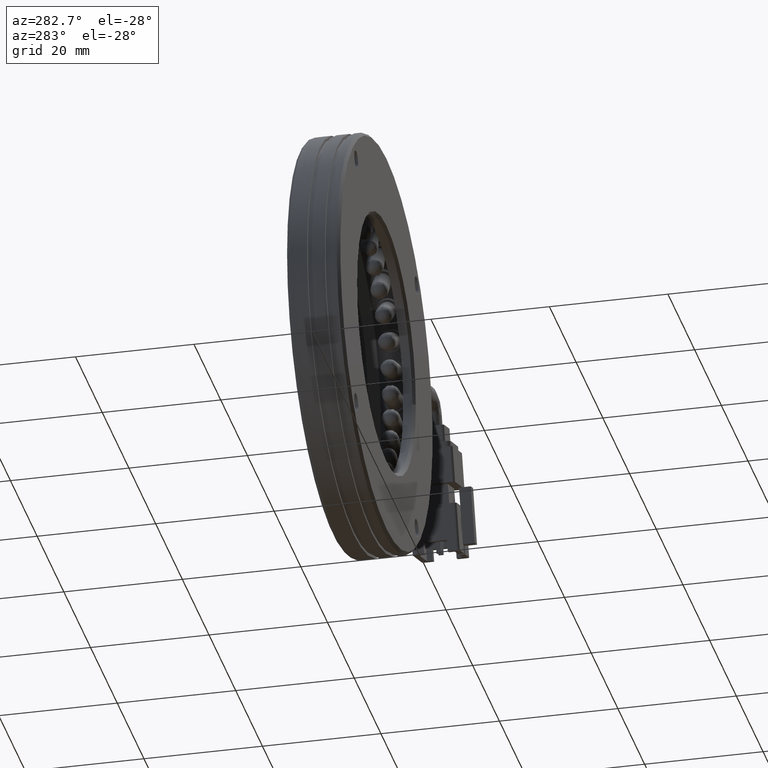
[diagram: clean part render]
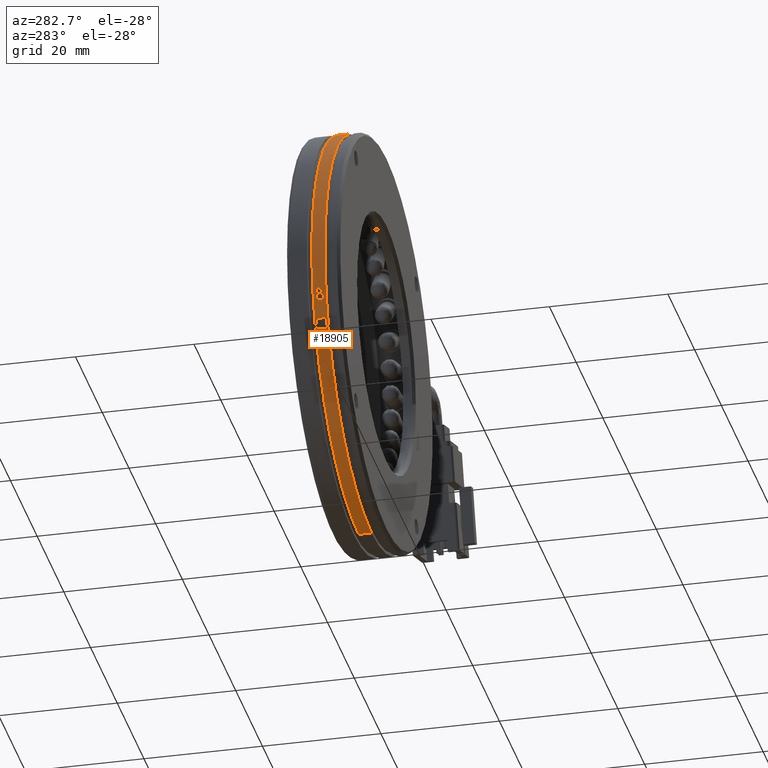
[diagram: same view with one face highlighted and labeled with its STEP entity id]
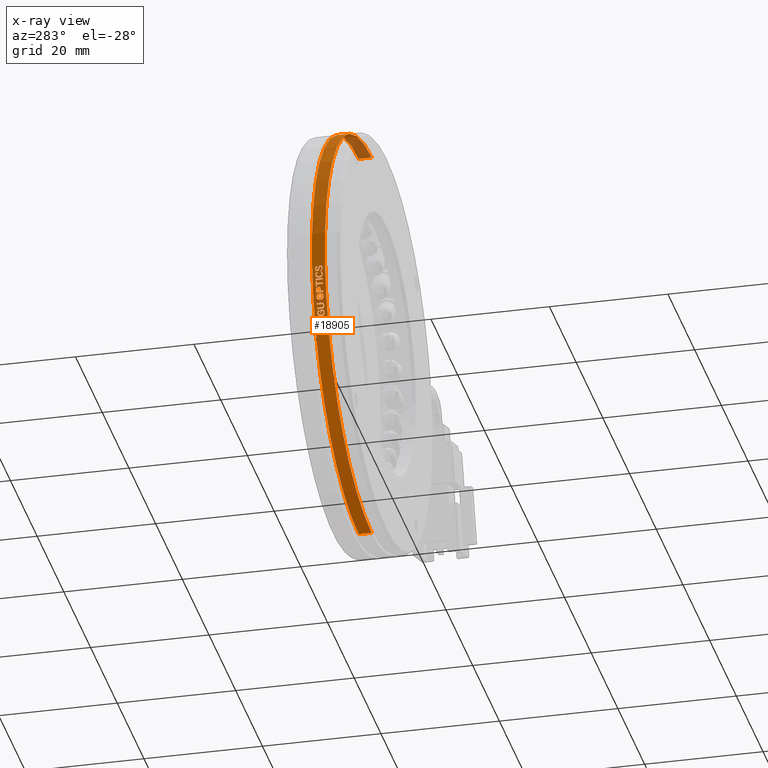
[diagram: x-ray of the same camera — body ghosted, the highlighted face saturated]
A machine part, auxiliary view. The second image highlights one B-rep face of the part: STEP entity #18905.
The next image is the same camera in x-ray: the body ghosted, the highlighted face saturated — about 5% of this face is hidden behind the body in this view.
In plain terms, the highlighted cylindrical surface (partial cylindrical patch) has radius 35 mm, axis along (-0, -1, -0).
Its self-contained STEP definition (entity closure, byte-faithful):
#35 = CARTESIAN_POINT ( 'NONE',  ( -38.99996171924271200, 7.491255161809046800, -10.80423981513031800 ) ) ;
#109 = EDGE_CURVE ( 'NONE', #6198, #13411, #38772, .T. ) ;
#144 = CARTESIAN_POINT ( 'NONE',  ( -40.39932456966155200, 8.266396549732789400, -4.647757563525561700 ) ) ;
#187 = EDGE_LOOP ( 'NONE', ( #8425, #2945, #38855, #6889, #29270, #25735, #29703, #34787, #36570, #19316 ) ) ;
#188 = CARTESIAN_POINT ( 'NONE',  ( -40.48439905091037600, 8.302053589977159500, -3.961368469579573700 ) ) ;
#224 = CIRCLE ( 'NONE', #16917, 34.99999999999999300 ) ;
#373 = CARTESIAN_POINT ( 'NONE',  ( -39.56608187434392200, 7.510960866478729500, -8.872332099668424700 ) ) ;
#398 = EDGE_CURVE ( 'NONE', #30225, #5549, #25940, .T. ) ;
#400 = EDGE_CURVE ( 'NONE', #13411, #25988, #6423, .T. ) ;
#424 = B_SPLINE_CURVE_WITH_KNOTS ( 'NONE', 3,
 ( #38413, #1207, #25982, #7408, #29135, #10490, #32295, #13623 ),
 .UNSPECIFIED., .F., .F.,
 ( 4, 2, 2, 4 ),
 ( 0.0000000000000000000, 0.0001654224964580917100, 0.0003308449929161834200, 0.0006616899858323762600 ),
 .UNSPECIFIED. ) ;
#484 = EDGE_CURVE ( 'NONE', #35610, #15954, #37527, .T. ) ;
#637 = EDGE_CURVE ( 'NONE', #26484, #4936, #2360, .T. ) ;
#644 = FACE_BOUND ( 'NONE', #19023, .T. ) ;
#676 = CARTESIAN_POINT ( 'NONE',  ( -40.41255655515828200, 8.432226185035320400, -4.548252076466474700 ) ) ;
#745 = ORIENTED_EDGE ( 'NONE', *, *, #31066, .T. ) ;
#836 = CARTESIAN_POINT ( 'NONE',  ( -40.29920628825083600, 7.222675619500254400, -5.342081949571110900 ) ) ;
#852 = CARTESIAN_POINT ( 'NONE',  ( -40.37389685762609300, 8.195998025642843700, -4.833941566406670300 ) ) ;
#865 = CARTESIAN_POINT ( 'NONE',  ( -39.19875312196083400, 7.669187247407189800, -10.17133243317831800 ) ) ;
#871 = EDGE_CURVE ( 'NONE', #6514, #35610, #6922, .T. ) ;
#877 = CARTESIAN_POINT ( 'NONE',  ( -40.51419670701039900, 7.358638392336760400, -3.691494015032572100 ) ) ;
#977 = CARTESIAN_POINT ( 'NONE',  ( -38.74213095999537200, 7.979963971136093000, -11.56857872402954100 ) ) ;
#994 = CARTESIAN_POINT ( 'NONE',  ( -40.41747967230236300, 7.357941789606277500, -4.510990520821576600 ) ) ;
#1017 = LINE ( 'NONE', #38835, #9200 ) ;
#1060 = CARTESIAN_POINT ( 'NONE',  ( -40.03785616239567000, 8.031977945081628400, -6.822733506228666500 ) ) ;
#1079 = CARTESIAN_POINT ( 'NONE',  ( -40.33392685614919100, 8.190022784469874800, -5.112429726999081000 ) ) ;
#1100 = ORIENTED_EDGE ( 'NONE', *, *, #3543, .T. ) ;
#1101 = ORIENTED_EDGE ( 'NONE', *, *, #37005, .T. ) ;
#1112 = VECTOR ( 'NONE', #27344, 1000.000000000000000 ) ;
#1126 = VECTOR ( 'NONE', #15554, 1000.000000000000000 ) ;
#1207 = CARTESIAN_POINT ( 'NONE',  ( -38.93641204321394200, 8.439419805546750200, -10.99825507435057200 ) ) ;
#1223 = CARTESIAN_POINT ( 'NONE',  ( -40.53529176790697600, 8.431466855415269600, -3.486049796518110500 ) ) ;
#1271 = VERTEX_POINT ( 'NONE', #30065 ) ;
#1291 = DIRECTION ( 'NONE',  ( -0.0000000000000000000, -1.000000000000000000, -0.0000000000000000000 ) ) ;
#1355 = EDGE_CURVE ( 'NONE', #18852, #17975, #11646, .T. ) ;
#1408 = CIRCLE ( 'NONE', #9532, 34.99999999999999300 ) ;
#1433 = DIRECTION ( 'NONE',  ( -3.470918447232477800E-015, -1.000000000000000000, 1.374664541131868600E-014 ) ) ;
#1439 = EDGE_LOOP ( 'NONE', ( #11449, #31368, #36609, #4969 ) ) ;
#1578 = DIRECTION ( 'NONE',  ( 0.0000000000000000000, -1.000000000000000000, -0.0000000000000000000 ) ) ;
#1608 = CARTESIAN_POINT ( 'NONE',  ( -40.32125991055812600, 7.819884921825819300, -5.197276920595964400 ) ) ;
#1641 = EDGE_CURVE ( 'NONE', #17975, #11610, #24273, .T. ) ;
#1664 = VERTEX_POINT ( 'NONE', #21664 ) ;
#1677 = ORIENTED_EDGE ( 'NONE', *, *, #35518, .T. ) ;
#1735 = CARTESIAN_POINT ( 'NONE',  ( -5.709292144904565300, 8.960202915404266800, -34.99999999999999300 ) ) ;
#1761 = VERTEX_POINT ( 'NONE', #18720 ) ;
#1763 = VERTEX_POINT ( 'NONE', #20587 ) ;
#1820 = CARTESIAN_POINT ( 'NONE',  ( -39.65104709321665400, 8.422929674936721500, -8.541815277076315400 ) ) ;
#1887 = CARTESIAN_POINT ( 'NONE',  ( -39.19875312196099800, -49.82318178258232400, -10.17133243317775600 ) ) ;
#1980 = EDGE_CURVE ( 'NONE', #21023, #3181, #4148, .T. ) ;
#1994 = CARTESIAN_POINT ( 'NONE',  ( -40.48955802644697900, 7.285328544696468200, -3.916646433782335000 ) ) ;
#2014 = CARTESIAN_POINT ( 'NONE',  ( -5.709292144904565300, 8.422675619500239500, 0.0000000000000000000 ) ) ;
#2016 = CARTESIAN_POINT ( 'NONE',  ( -39.31469554837985900, 7.389938712935268100, -9.781523189364362400 ) ) ;
#2019 = CARTESIAN_POINT ( 'NONE',  ( -38.84917392072404100, 8.157925647733085500, -11.25827770829509000 ) ) ;
#2098 = DIRECTION ( 'NONE',  ( 0.0000000000000000000, -1.000000000000000000, -0.0000000000000000000 ) ) ;
#2111 = ORIENTED_EDGE ( 'NONE', *, *, #35041, .T. ) ;
#2123 = CARTESIAN_POINT ( 'NONE',  ( -38.58892541590628200, 6.980985665217229300, -11.99714559153918000 ) ) ;
#2157 = VERTEX_POINT ( 'NONE', #14884 ) ;
#2184 = CARTESIAN_POINT ( 'NONE',  ( -40.50665843673757400, 8.155241945682604400, -3.760764559234163400 ) ) ;
#2205 = VECTOR ( 'NONE', #4844, 1000.000000000000000 ) ;
#2323 = CARTESIAN_POINT ( 'NONE',  ( -40.54935957763746800, 7.224654571452235900, -3.342562369500863300 ) ) ;
#2360 = B_SPLINE_CURVE_WITH_KNOTS ( 'NONE', 3,
 ( #36955, #36578, #36725, #37033, #37096, #37178 ),
 .UNSPECIFIED., .F., .F.,
 ( 4, 2, 4 ),
 ( 0.0000000000000000000, 0.0001571084569936048600, 0.0003142169139872097300 ),
 .UNSPECIFIED. ) ;
#2481 = EDGE_CURVE ( 'NONE', #23900, #24019, #30105, .T. ) ;
#2489 = LINE ( 'NONE', #1887, #26205 ) ;
#2680 = CARTESIAN_POINT ( 'NONE',  ( -38.76871835727249000, 7.438289050486608800, -11.49247762764545100 ) ) ;
#2704 = CARTESIAN_POINT ( 'NONE',  ( -40.26084559011923100, -49.82318178258228900, -5.584814636357588600 ) ) ;
#2744 = VERTEX_POINT ( 'NONE', #25363 ) ;
#2756 = CARTESIAN_POINT ( 'NONE',  ( -39.35110960122650400, 7.238036717040022200, -9.655727849213649300 ) ) ;
#2924 = CIRCLE ( 'NONE', #24147, 34.99999999999999300 ) ;
#2945 = ORIENTED_EDGE ( 'NONE', *, *, #33869, .T. ) ;
#3058 = CARTESIAN_POINT ( 'NONE',  ( -38.92538948739746000, 7.362210503221152900, -11.03135881630345900 ) ) ;
#3153 = VERTEX_POINT ( 'NONE', #36396 ) ;
#3181 = VERTEX_POINT ( 'NONE', #14630 ) ;
#3201 = CARTESIAN_POINT ( 'NONE',  ( -38.90883928611889800, 7.366881929807169300, -11.08119248646694100 ) ) ;
#3252 = AXIS2_PLACEMENT_3D ( 'NONE', #33730, #15044, #36848 ) ;
#3264 = CARTESIAN_POINT ( 'NONE',  ( -40.23719504684591900, 8.255233759035119700, -5.729216455512003300 ) ) ;
#3300 = CARTESIAN_POINT ( 'NONE',  ( -40.50247945919910800, 8.423739182569601500, -3.800172156765631900 ) ) ;
#3312 = EDGE_LOOP ( 'NONE', ( #38229, #4515, #2111, #33105, #4078, #39700, #18493 ) ) ;
#3321 = CARTESIAN_POINT ( 'NONE',  ( -38.83496532397782600, 7.563843299379216000, -11.30002077147243300 ) ) ;
#3358 = CARTESIAN_POINT ( 'NONE',  ( -40.26084559011923100, 8.422675619500253700, -5.584814636357588600 ) ) ;
#3446 = CARTESIAN_POINT ( 'NONE',  ( -38.82954374709914400, 7.614285603708827600, -11.31587608863365100 ) ) ;
#3471 = CARTESIAN_POINT ( 'NONE',  ( -39.55218318395323300, 7.736573134054321300, -8.925174409055291100 ) ) ;
#3496 = VERTEX_POINT ( 'NONE', #15753 ) ;
#3543 = EDGE_CURVE ( 'NONE', #36040, #35431, #34827, .T. ) ;
#3582 = CARTESIAN_POINT ( 'NONE',  ( -38.82021610022735600, 7.819884921825778400, -11.34313514090487000 ) ) ;
#3609 = B_SPLINE_CURVE_WITH_KNOTS ( 'NONE', 3,
 ( #6353, #9457, #31272, #12545, #34366, #15712, #37485, #18808 ),
 .UNSPECIFIED., .F., .F.,
 ( 4, 2, 2, 4 ),
 ( 0.0000000000000000000, 0.0001501656109552490500, 0.0003003312219104981000, 0.0006006624438209961900 ),
 .UNSPECIFIED. ) ;
#3781 = CARTESIAN_POINT ( 'NONE',  ( -40.43371579231779100, 8.376161693293385100, -4.383668734466713300 ) ) ;
#3839 = CARTESIAN_POINT ( 'NONE',  ( -40.48101679372501100, 7.561069157719561700, -3.991237260824482400 ) ) ;
#3876 = B_SPLINE_CURVE_WITH_KNOTS ( 'NONE', 3,
 ( #32951, #8077, #39256, #20542, #2019, #23676, #5145, #26781 ),
 .UNSPECIFIED., .F., .F.,
 ( 4, 2, 2, 4 ),
 ( 0.0000000000000000000, 0.0001510910873256221600, 0.0003021821746512443300, 0.0006043643493024785700 ),
 .UNSPECIFIED. ) ;
#3909 = CIRCLE ( 'NONE', #38083, 34.99999999999999300 ) ;
#3945 = CARTESIAN_POINT ( 'NONE',  ( -40.36311312112147900, 8.061564447589775600, -4.910517334215262200 ) ) ;
#3960 = CARTESIAN_POINT ( 'NONE',  ( -39.19956218354241200, 7.593185600686675600, -10.16867133117876400 ) ) ;
#3987 = CARTESIAN_POINT ( 'NONE',  ( -39.81836345621975700, 7.814303526476971100, -7.846735262490696500 ) ) ;
#4030 = CIRCLE ( 'NONE', #20328, 34.99999999999999300 ) ;
#4034 = CARTESIAN_POINT ( 'NONE',  ( -40.13005702861367800, 7.222675619500247300, -6.341210043865213000 ) ) ;
#4078 = ORIENTED_EDGE ( 'NONE', *, *, #33556, .T. ) ;
#4091 = CARTESIAN_POINT ( 'NONE',  ( -38.76750754569328400, 8.200646507901360800, -11.49595500778165700 ) ) ;
#4127 = CARTESIAN_POINT ( 'NONE',  ( -39.81728214877578900, 7.892439817392059400, -7.851435611295894300 ) ) ;
#4142 = EDGE_LOOP ( 'NONE', ( #12878, #30377, #27320, #38033, #39603, #25705, #39374, #5927 ) ) ;
#4148 = B_SPLINE_CURVE_WITH_KNOTS ( 'NONE', 3,
 ( #5303, #7733, #6147, #5185, #4915, #4789, #4659, #4381, #4127, #3987 ),
 .UNSPECIFIED., .F., .F.,
 ( 4, 2, 2, 2, 4 ),
 ( 0.0000000000000000000, 0.0002316628252774048600, 0.0004633256505548097300, 0.0006949884758322145700, 0.0009266513011096194600 ),
 .UNSPECIFIED. ) ;
#4184 = CARTESIAN_POINT ( 'NONE',  ( -40.35679007285930500, 8.358459406727735800, -4.955390583557431200 ) ) ;
#4238 = EDGE_CURVE ( 'NONE', #21350, #27687, #26305, .T. ) ;
#4270 = CARTESIAN_POINT ( 'NONE',  ( -39.12517057512428700, 8.422675619500219900, -10.41052682321005000 ) ) ;
#4282 = CARTESIAN_POINT ( 'NONE',  ( -5.709292144904565300, 7.222675619500247300, 0.0000000000000000000 ) ) ;
#4313 = CARTESIAN_POINT ( 'NONE',  ( -5.709292144904565300, 8.422675619500260800, 0.0000000000000000000 ) ) ;
#4331 = CARTESIAN_POINT ( 'NONE',  ( -40.55049553052098300, 8.379288013979959300, -3.330532701057778300 ) ) ;
#4381 = CARTESIAN_POINT ( 'NONE',  ( -39.81471281410185300, 7.970489118088235800, -7.862619172650785700 ) ) ;
#4400 = B_SPLINE_CURVE_WITH_KNOTS ( 'NONE', 3,
 ( #25206, #13103, #19331, #852, #22478, #3945, #25615, #7038, #28750, #10112 ),
 .UNSPECIFIED., .F., .F.,
 ( 4, 2, 2, 2, 4 ),
 ( 0.0000000000000000000, 0.0001530363303679040700, 0.0003060726607358081400, 0.0004591089911037121800, 0.0006121453214716162800 ),
 .UNSPECIFIED. ) ;
#4407 = DIRECTION ( 'NONE',  ( -0.0000000000000000000, -1.000000000000000000, -0.0000000000000000000 ) ) ;
#4515 = ORIENTED_EDGE ( 'NONE', *, *, #28482, .T. ) ;
#4588 = CARTESIAN_POINT ( 'NONE',  ( -40.39863021250401700, 7.200350038104937200, -4.652937183306445200 ) ) ;
#4659 = CARTESIAN_POINT ( 'NONE',  ( -39.80464579682593000, 8.119002150315049300, -7.906159537187290800 ) ) ;
#4719 = VECTOR ( 'NONE', #1291, 1000.000000000000000 ) ;
#4789 = CARTESIAN_POINT ( 'NONE',  ( -39.79689687238317200, 8.191136736683356300, -7.939624450835939500 ) ) ;
#4844 = DIRECTION ( 'NONE',  ( -0.0000000000000000000, -1.000000000000000000, -0.0000000000000000000 ) ) ;
#4847 = VECTOR ( 'NONE', #14633, 1000.000000000000000 ) ;
#4879 = CARTESIAN_POINT ( 'NONE',  ( -38.52896625789829700, 8.740899625888621600, -12.16013943657264400 ) ) ;
#4892 = EDGE_CURVE ( 'NONE', #37160, #14268, #27454, .T. ) ;
#4915 = CARTESIAN_POINT ( 'NONE',  ( -39.77438534393510800, 8.311421101926505600, -8.035661629168855000 ) ) ;
#4922 = CARTESIAN_POINT ( 'NONE',  ( -39.68912917594610000, 8.439419805546771500, -8.388723105685278000 ) ) ;
#4936 = VERTEX_POINT ( 'NONE', #17024 ) ;
#4969 = ORIENTED_EDGE ( 'NONE', *, *, #8764, .T. ) ;
#5096 = CARTESIAN_POINT ( 'NONE',  ( -39.95628834277789600, 8.422675619500243000, -7.221028418642943900 ) ) ;
#5120 = CARTESIAN_POINT ( 'NONE',  ( -40.47489217857849300, 7.423605852058430300, -4.043890985005838900 ) ) ;
#5144 = CARTESIAN_POINT ( 'NONE',  ( -39.33623799906056500, 7.477897251754949800, -9.707163120419693300 ) ) ;
#5145 = CARTESIAN_POINT ( 'NONE',  ( -38.82142874935018300, 7.921099948651758800, -11.33959538470946000 ) ) ;
#5185 = CARTESIAN_POINT ( 'NONE',  ( -39.75948863295361900, 8.358832402196092900, -8.098724075592878400 ) ) ;
#5224 = CARTESIAN_POINT ( 'NONE',  ( -38.54441143241581400, 6.951255465749302000, -12.11845359925738700 ) ) ;
#5276 = CARTESIAN_POINT ( 'NONE',  ( -40.50653738225442200, 8.110117479965365900, -3.761877708237267600 ) ) ;
#5303 = CARTESIAN_POINT ( 'NONE',  ( -39.68912917594610000, 8.439419805546771500, -8.388723105685278000 ) ) ;
#5409 = EDGE_CURVE ( 'NONE', #7332, #14127, #3909, .T. ) ;
#5410 = CARTESIAN_POINT ( 'NONE',  ( -40.53315610122200500, 7.200350038104948800, -3.507369076560731300 ) ) ;
#5432 = VECTOR ( 'NONE', #25443, 1000.000000000000000 ) ;
#5453 = CARTESIAN_POINT ( 'NONE',  ( -5.709292144904565300, 7.222675619500254400, 0.0000000000000000000 ) ) ;
#5549 = VERTEX_POINT ( 'NONE', #30249 ) ;
#5711 = CARTESIAN_POINT ( 'NONE',  ( -40.54623750038824400, 8.065466317174685400, -3.374498229225254300 ) ) ;
#5721 = ORIENTED_EDGE ( 'NONE', *, *, #11983, .T. ) ;
#5748 = CARTESIAN_POINT ( 'NONE',  ( -37.98725723676801600, 8.445809192850616000, -13.53266306121766700 ) ) ;
#5769 = CARTESIAN_POINT ( 'NONE',  ( -38.74225550266923800, 7.665212029788221100, -11.56822487488364500 ) ) ;
#5839 = CARTESIAN_POINT ( 'NONE',  ( -39.29136010015030000, 7.196550906123368600, -9.861544735388362100 ) ) ;
#5848 = VERTEX_POINT ( 'NONE', #3358 ) ;
#5914 = LINE ( 'NONE', #16364, #26737 ) ;
#5927 = ORIENTED_EDGE ( 'NONE', *, *, #17174, .T. ) ;
#5945 = ORIENTED_EDGE ( 'NONE', *, *, #26823, .T. ) ;
#6024 = DIRECTION ( 'NONE',  ( 0.0000000000000000000, 1.000000000000000000, 0.0000000000000000000 ) ) ;
#6147 = CARTESIAN_POINT ( 'NONE',  ( -39.72578698116697600, 8.420034948256942500, -8.239131724998090400 ) ) ;
#6198 = VERTEX_POINT ( 'NONE', #15368 ) ;
#6286 = CARTESIAN_POINT ( 'NONE',  ( -38.92374827998977300, 7.200350038104891900, -11.03629936393990000 ) ) ;
#6353 = CARTESIAN_POINT ( 'NONE',  ( -39.07672688670966500, 7.468257014849023700, -10.56476685740761000 ) ) ;
#6376 = CARTESIAN_POINT ( 'NONE',  ( -40.52422693043394700, 8.439419805546807000, -3.594484090844743300 ) ) ;
#6406 = EDGE_CURVE ( 'NONE', #3181, #27020, #25421, .T. ) ;
#6423 = LINE ( 'NONE', #8483, #18034 ) ;
#6440 = EDGE_LOOP ( 'NONE', ( #745, #39051, #20895, #1677, #19846, #22689, #1100, #30751, #18344, #19823, #36210, #32710, #25638, #34214 ) ) ;
#6514 = VERTEX_POINT ( 'NONE', #30356 ) ;
#6521 = EDGE_CURVE ( 'NONE', #39364, #19786, #19389, .T. ) ;
#6564 = ORIENTED_EDGE ( 'NONE', *, *, #637, .T. ) ;
#6691 = CARTESIAN_POINT ( 'NONE',  ( -40.06103514893978700, -49.82318178258231000, -6.705054256657208000 ) ) ;
#6730 = CARTESIAN_POINT ( 'NONE',  ( -40.32176732840903100, 7.896557920236519500, -5.193897702869572100 ) ) ;
#6849 = CARTESIAN_POINT ( 'NONE',  ( -40.44973167136441100, 8.258070460879587000, -4.254718912903016700 ) ) ;
#6889 = ORIENTED_EDGE ( 'NONE', *, *, #400, .T. ) ;
#6922 = CIRCLE ( 'NONE', #16363, 34.99999999999999300 ) ;
#6929 = CARTESIAN_POINT ( 'NONE',  ( -38.82083377132644100, 7.767632155264022800, -11.34133214195114400 ) ) ;
#6998 = CARTESIAN_POINT ( 'NONE',  ( -39.19875312196099800, 8.422675619500219900, -10.17133243317775600 ) ) ;
#7001 = ORIENTED_EDGE ( 'NONE', *, *, #21506, .T. ) ;
#7033 = AXIS2_PLACEMENT_3D ( 'NONE', #33785, #15103, #36904 ) ;
#7038 = CARTESIAN_POINT ( 'NONE',  ( -40.35896808852523800, 7.910801860684991900, -4.939638056258899300 ) ) ;
#7052 = CARTESIAN_POINT ( 'NONE',  ( -39.20813479704034400, 7.482108126762488700, -10.14041591830397900 ) ) ;
#7144 = CARTESIAN_POINT ( 'NONE',  ( -5.709292144904565300, 8.422675619500219900, 0.0000000000000000000 ) ) ;
#7173 = CARTESIAN_POINT ( 'NONE',  ( -38.82248348599115700, 8.365263761825456600, -11.33674629702095200 ) ) ;
#7271 = CARTESIAN_POINT ( 'NONE',  ( -40.38694644359755200, 8.434385633760129500, -4.739858122189415800 ) ) ;
#7332 = VERTEX_POINT ( 'NONE', #34249 ) ;
#7368 = DIRECTION ( 'NONE',  ( 0.0000000000000000000, 0.0000000000000000000, 1.000000000000000000 ) ) ;
#7400 = DIRECTION ( 'NONE',  ( 0.0000000000000000000, 0.0000000000000000000, -1.000000000000000000 ) ) ;
#7408 = CARTESIAN_POINT ( 'NONE',  ( -38.98712138907237800, 8.407877450413048200, -10.84384488724455900 ) ) ;
#7422 = CARTESIAN_POINT ( 'NONE',  ( -40.56190549431917700, 8.269175613935072300, -3.208735270689636400 ) ) ;
#7434 = CARTESIAN_POINT ( 'NONE',  ( -40.17456373751147000, 8.255233759035112600, -6.094674236400435600 ) ) ;
#7482 = VERTEX_POINT ( 'NONE', #12852 ) ;
#7654 = EDGE_CURVE ( 'NONE', #5549, #3496, #19142, .T. ) ;
#7733 = CARTESIAN_POINT ( 'NONE',  ( -39.70784408515407200, 8.434397294743654100, -8.312915434252305500 ) ) ;
#7795 = EDGE_CURVE ( 'NONE', #4936, #30225, #17341, .T. ) ;
#7805 = VERTEX_POINT ( 'NONE', #35968 ) ;
#7847 = VERTEX_POINT ( 'NONE', #8633 ) ;
#7857 = FACE_BOUND ( 'NONE', #11257, .T. ) ;
#7911 = CARTESIAN_POINT ( 'NONE',  ( -38.99545062048834200, 8.087791898569996400, -10.81811693125576600 ) ) ;
#7946 = ORIENTED_EDGE ( 'NONE', *, *, #30379, .T. ) ;
#7956 = CARTESIAN_POINT ( 'NONE',  ( -38.55938138091431000, 8.736541287181555800, -12.07780680299593500 ) ) ;
#8042 = CARTESIAN_POINT ( 'NONE',  ( -39.85305510295734900, -49.82318178258230300, -7.694377886762671500 ) ) ;
#8077 = CARTESIAN_POINT ( 'NONE',  ( -38.90279956121813900, 8.267128539364961200, -11.09926273218115300 ) ) ;
#8110 = EDGE_CURVE ( 'NONE', #25988, #19852, #13826, .T. ) ;
#8111 = EDGE_CURVE ( 'NONE', #11610, #10851, #29400, .T. ) ;
#8161 = EDGE_CURVE ( 'NONE', #5848, #8718, #33788, .T. ) ;
#8205 = CARTESIAN_POINT ( 'NONE',  ( -39.34351962650099200, 7.591435000567694900, -9.681879432709637400 ) ) ;
#8263 = B_SPLINE_CURVE_WITH_KNOTS ( 'NONE', 3,
 ( #4879, #26527, #7956, #29711, #11030, #32837, #14190, #35958, #17289, #39122 ),
 .UNSPECIFIED., .F., .F.,
 ( 4, 2, 2, 2, 4 ),
 ( 0.0000000000000000000, 0.0001309404312721280000, 0.0002618808625442560000, 0.0003928212938163840000, 0.0005237617250885119900 ),
 .UNSPECIFIED. ) ;
#8304 = EDGE_CURVE ( 'NONE', #11180, #35182, #34257, .T. ) ;
#8365 = VERTEX_POINT ( 'NONE', #23521 ) ;
#8368 = DIRECTION ( 'NONE',  ( 0.0000000000000000000, -6.938893903907230000E-015, -1.000000000000000000 ) ) ;
#8406 = DIRECTION ( 'NONE',  ( 1.754067551975839800E-015, 1.000000000000000000, -6.947021380965523500E-015 ) ) ;
#8425 = ORIENTED_EDGE ( 'NONE', *, *, #484, .T. ) ;
#8453 = CARTESIAN_POINT ( 'NONE',  ( -38.90062003595176800, 7.914768642756036400, -11.10566309722169700 ) ) ;
#8459 = CARTESIAN_POINT ( 'NONE',  ( -40.45697096470811300, 7.401280270663060700, -4.195094353620150200 ) ) ;
#8483 = CARTESIAN_POINT ( 'NONE',  ( -39.12517057512438600, -49.82318178258232400, -10.41052682320971100 ) ) ;
#8514 = CARTESIAN_POINT ( 'NONE',  ( -5.709292144904565300, 8.422675619500234100, 0.0000000000000000000 ) ) ;
#8516 = ORIENTED_EDGE ( 'NONE', *, *, #23522, .T. ) ;
#8545 = EDGE_LOOP ( 'NONE', ( #19979, #25317, #23806, #33809, #22924, #20721, #7946, #32960, #17028, #24434, #18876, #6564, #28887, #26841 ) ) ;
#8556 = DIRECTION ( 'NONE',  ( 0.0000000000000000000, 0.0000000000000000000, 1.000000000000000000 ) ) ;
#8573 = CIRCLE ( 'NONE', #37529, 34.99999999999999300 ) ;
#8581 = EDGE_CURVE ( 'NONE', #17546, #33506, #37738, .T. ) ;
#8595 = CARTESIAN_POINT ( 'NONE',  ( -40.36264144216514900, 7.599841453528107100, -4.913809292064947900 ) ) ;
#8633 = CARTESIAN_POINT ( 'NONE',  ( -40.47489217857849300, 7.423605852058430300, -4.043890985005838900 ) ) ;
#8708 = CARTESIAN_POINT ( 'NONE',  ( -39.85305510295734900, 7.222675619500240200, -7.694377886762671500 ) ) ;
#8718 = VERTEX_POINT ( 'NONE', #31054 ) ;
#8764 = EDGE_CURVE ( 'NONE', #27020, #29211, #16306, .T. ) ;
#8772 = CARTESIAN_POINT ( 'NONE',  ( -40.54482800603794600, 7.638491446836354700, -3.389040281601700700 ) ) ;
#8795 = CARTESIAN_POINT ( 'NONE',  ( -39.41280069777948800, 7.668752499682034900, -9.437877003859155100 ) ) ;
#8820 = FACE_BOUND ( 'NONE', #8545, .T. ) ;
#8845 = VERTEX_POINT ( 'NONE', #37700 ) ;
#8862 = CARTESIAN_POINT ( 'NONE',  ( -38.73806386218188200, 7.825466317174605300, -11.58016575218082900 ) ) ;
#9007 = CARTESIAN_POINT ( 'NONE',  ( -40.03785616239567000, 8.031977945081628400, -6.822733506228666500 ) ) ;
#9200 = VECTOR ( 'NONE', #35692, 1000.000000000000000 ) ;
#9293 = ORIENTED_EDGE ( 'NONE', *, *, #27130, .T. ) ;
#9296 = EDGE_CURVE ( 'NONE', #14268, #15757, #15229, .T. ) ;
#9431 = CARTESIAN_POINT ( 'NONE',  ( -38.04771774102082600, 6.980184560638833500, -13.38760694626230800 ) ) ;
#9457 = CARTESIAN_POINT ( 'NONE',  ( -39.07117212631721500, 7.421032130401370000, -10.58231084180430800 ) ) ;
#9484 = CARTESIAN_POINT ( 'NONE',  ( -39.90603829501223700, 7.222675619500242800, -7.455370731566343800 ) ) ;
#9523 = CARTESIAN_POINT ( 'NONE',  ( -39.68912917594610000, 7.200350038104912400, -8.388723105685269100 ) ) ;
#9532 = AXIS2_PLACEMENT_3D ( 'NONE', #20086, #1578, #23226 ) ;
#9678 = VERTEX_POINT ( 'NONE', #32969 ) ;
#9962 = CARTESIAN_POINT ( 'NONE',  ( -40.45864239882633500, 8.100388977702991200, -4.181244878212571500 ) ) ;
#9991 = LINE ( 'NONE', #26766, #17262 ) ;
#10011 = EDGE_CURVE ( 'NONE', #35431, #28629, #14708, .T. ) ;
#10112 = CARTESIAN_POINT ( 'NONE',  ( -40.35841217280031400, 7.808722131128164700, -4.943529234511930600 ) ) ;
#10115 = CARTESIAN_POINT ( 'NONE',  ( -38.73897997783097200, 7.903406844032245400, -11.57755282113232900 ) ) ;
#10119 = CARTESIAN_POINT ( 'NONE',  ( -40.54775614871339000, 7.540815154383960100, -3.358783389162881300 ) ) ;
#10128 = CARTESIAN_POINT ( 'NONE',  ( -39.22995528470801900, 7.395820149750735900, -10.06808778096659100 ) ) ;
#10200 = CARTESIAN_POINT ( 'NONE',  ( -39.97841086063361600, 8.417931859243662300, -7.115493032691230000 ) ) ;
#10204 = CARTESIAN_POINT ( 'NONE',  ( -38.11332303925215100, 8.740899625888612700, -13.22795455836488900 ) ) ;
#10207 = VERTEX_POINT ( 'NONE', #836 ) ;
#10211 = DIRECTION ( 'NONE',  ( 0.0000000000000000000, 0.0000000000000000000, -1.000000000000000000 ) ) ;
#10254 = CARTESIAN_POINT ( 'NONE',  ( -38.89403620348128500, 8.435338422186063700, -11.12559718257487900 ) ) ;
#10258 = EDGE_CURVE ( 'NONE', #15757, #35277, #13167, .T. ) ;
#10382 = CARTESIAN_POINT ( 'NONE',  ( -5.709292144904565300, 6.760202915404272900, -34.99999999999999300 ) ) ;
#10474 = EDGE_CURVE ( 'NONE', #19852, #9678, #2489, .T. ) ;
#10490 = CARTESIAN_POINT ( 'NONE',  ( -39.04581288166566100, 8.293256463206304800, -10.66231234355703700 ) ) ;
#10500 = CARTESIAN_POINT ( 'NONE',  ( -40.56792547127482600, 8.119658643845561100, -3.142574103923013500 ) ) ;
#10526 = CARTESIAN_POINT ( 'NONE',  ( -40.54861180303578300, 7.884158676122932100, -3.351134153416093700 ) ) ;
#10615 = VECTOR ( 'NONE', #40297, 1000.000000000000000 ) ;
#10643 = CARTESIAN_POINT ( 'NONE',  ( -40.54280727806384700, 7.409304544312266900, -3.409813867932107700 ) ) ;
#10726 = AXIS2_PLACEMENT_3D ( 'NONE', #11376, #33166, #14514 ) ;
#10738 = CARTESIAN_POINT ( 'NONE',  ( -39.00510746707349300, 7.546396549732784300, -10.78835863475163300 ) ) ;
#10755 = CARTESIAN_POINT ( 'NONE',  ( -40.37795944005371500, 7.217756360751677000, -4.805074749955001500 ) ) ;
#10822 = CARTESIAN_POINT ( 'NONE',  ( -38.90062003595176800, 7.747326782290898000, -11.10566309722169700 ) ) ;
#10851 = VERTEX_POINT ( 'NONE', #19013 ) ;
#10945 = CARTESIAN_POINT ( 'NONE',  ( -40.50653738225442200, 8.110117479965365900, -3.761877708237267600 ) ) ;
#10963 = CARTESIAN_POINT ( 'NONE',  ( -39.55129533759086500, 7.814303526476964000, -8.928539628976865900 ) ) ;
#11030 = CARTESIAN_POINT ( 'NONE',  ( -38.60234651022396700, 8.690365941922886300, -11.96026621005210100 ) ) ;
#11083 = CARTESIAN_POINT ( 'NONE',  ( -40.50671151195425800, 8.060227966991815800, -3.760281987116633300 ) ) ;
#11180 = VERTEX_POINT ( 'NONE', #17760 ) ;
#11232 = EDGE_CURVE ( 'NONE', #38933, #17546, #33914, .T. ) ;
#11245 = ORIENTED_EDGE ( 'NONE', *, *, #13341, .T. ) ;
#11244 = CARTESIAN_POINT ( 'NONE',  ( -40.50633539089841400, 8.085411719179077700, -3.763746121645845700 ) ) ;
#11257 = EDGE_LOOP ( 'NONE', ( #5721, #39890, #36125, #22263 ) ) ;
#11302 = CARTESIAN_POINT ( 'NONE',  ( -39.34359537937439200, 7.669187247407199600, -9.681613808231128700 ) ) ;
#11316 = CARTESIAN_POINT ( 'NONE',  ( -39.27207348800719400, 7.362210503221170700, -9.926716905154590300 ) ) ;
#11376 = CARTESIAN_POINT ( 'NONE',  ( -5.709292144904565300, 8.740899625888642900, 0.0000000000000000000 ) ) ;
#11449 = ORIENTED_EDGE ( 'NONE', *, *, #39963, .T. ) ;
#11528 = CARTESIAN_POINT ( 'NONE',  ( -40.35841217280031400, 7.808722131128164700, -4.943529234511930600 ) ) ;
#11532 = B_SPLINE_CURVE_WITH_KNOTS ( 'NONE', 3,
 ( #865, #22494, #3960, #25631, #7052, #28768, #10128, #31953, #13257, #35031 ),
 .UNSPECIFIED., .F., .F.,
 ( 4, 2, 2, 2, 4 ),
 ( 0.0000000000000000000, 0.0001136360852531327700, 0.0002272721705062655300, 0.0003409082557593983200, 0.0004545443410125310700 ),
 .UNSPECIFIED. ) ;
#11534 = B_SPLINE_CURVE_WITH_KNOTS ( 'NONE', 3,
 ( #16770, #35425, #29301, #10643, #32462, #13796, #35557, #16900 ),
 .UNSPECIFIED., .F., .F.,
 ( 4, 2, 2, 4 ),
 ( 0.0000000000000000000, 0.0001717628989200597800, 0.0002576443483800910700, 0.0003435257978401223300 ),
 .UNSPECIFIED. ) ;
#11610 = VERTEX_POINT ( 'NONE', #15975 ) ;
#11646 = LINE ( 'NONE', #19820, #28200 ) ;
#11663 = CARTESIAN_POINT ( 'NONE',  ( -40.37356231429648500, 7.460378094994862200, -4.836244474339715700 ) ) ;
#11744 = DIRECTION ( 'NONE',  ( 3.398363543309325900E-015, 1.000000000000000000, -1.345929019043208500E-014 ) ) ;
#11765 = CARTESIAN_POINT ( 'NONE',  ( -5.709292144904565300, 6.760202915404272900, 0.0000000000000000000 ) ) ;
#11864 = CARTESIAN_POINT ( 'NONE',  ( -40.53668835988683100, 7.701537086198607400, -3.471933231849497300 ) ) ;
#11905 = EDGE_CURVE ( 'NONE', #1271, #25524, #8263, .T. ) ;
#11956 = DIRECTION ( 'NONE',  ( -0.0000000000000000000, -1.000000000000000000, -0.0000000000000000000 ) ) ;
#11983 = EDGE_CURVE ( 'NONE', #14947, #5848, #24832, .T. ) ;
#12076 = CARTESIAN_POINT ( 'NONE',  ( -40.03162370690003500, 7.818736150744909400, -6.854033237155064700 ) ) ;
#12102 = CIRCLE ( 'NONE', #31173, 34.99999999999999300 ) ;
#12120 = CARTESIAN_POINT ( 'NONE',  ( -40.41765857223748500, 8.222574024657944800, -4.508847656390699400 ) ) ;
#12221 = CARTESIAN_POINT ( 'NONE',  ( -40.50653738225442200, 8.110117479965365900, -3.761877708237267600 ) ) ;
#12238 = CARTESIAN_POINT ( 'NONE',  ( -40.13005702861361400, 8.255233759035112600, -6.341210043865563900 ) ) ;
#12365 = AXIS2_PLACEMENT_3D ( 'NONE', #4313, #25973, #7400 ) ;
#12367 = DIRECTION ( 'NONE',  ( -0.0000000000000000000, -1.000000000000000000, -0.0000000000000000000 ) ) ;
#12393 = CARTESIAN_POINT ( 'NONE',  ( -38.11332303925215800, 6.951255465749294900, -13.22795455836487500 ) ) ;
#12407 = CARTESIAN_POINT ( 'NONE',  ( -40.23719504684591900, -49.82318178258231000, -5.729216455512003300 ) ) ;
#12509 = CARTESIAN_POINT ( 'NONE',  ( -38.00759327879545400, 7.063534933315038300, -13.48409261021539700 ) ) ;
#12545 = CARTESIAN_POINT ( 'NONE',  ( -39.04218397287789300, 7.304343552560856000, -10.67330868924442400 ) ) ;
#12603 = B_SPLINE_CURVE_WITH_KNOTS ( 'NONE', 3,
 ( #12393, #18652, #28032, #9431, #31240, #12509, #34344, #15682, #37462, #18774 ),
 .UNSPECIFIED., .F., .F.,
 ( 4, 2, 2, 2, 4 ),
 ( 1.734723475976807100E-018, 0.0001312603448982134600, 0.0002625206897964251900, 0.0003937810346946369200, 0.0005250413795928486500 ),
 .UNSPECIFIED. ) ;
#12680 = FACE_OUTER_BOUND ( 'NONE', #34584, .T. ) ;
#12852 = CARTESIAN_POINT ( 'NONE',  ( -40.39723486211963200, 8.439419805546799900, -4.663328215685306900 ) ) ;
#12878 = ORIENTED_EDGE ( 'NONE', *, *, #33129, .T. ) ;
#12994 = CARTESIAN_POINT ( 'NONE',  ( -40.47489217857850000, 7.635698875314251800, -4.043890985005838900 ) ) ;
#13017 = CARTESIAN_POINT ( 'NONE',  ( -40.50901151699680700, 8.016370683659625100, -3.738936593817477200 ) ) ;
#13037 = EDGE_CURVE ( 'NONE', #14114, #38933, #21285, .T. ) ;
#13098 = ORIENTED_EDGE ( 'NONE', *, *, #4238, .T. ) ;
#13103 = CARTESIAN_POINT ( 'NONE',  ( -40.39248641665467000, 8.264424269558633200, -4.698796316363246500 ) ) ;
#13167 = B_SPLINE_CURVE_WITH_KNOTS ( 'NONE', 3,
 ( #35283, #38428, #1223, #22862, #4331, #25994, #7422, #29147, #10500, #32312 ),
 .UNSPECIFIED., .F., .F.,
 ( 4, 2, 2, 2, 4 ),
 ( 0.0000000000000000000, 0.0001633882542697660100, 0.0003267765085395320200, 0.0004901647628092980000, 0.0006535530170790640400 ),
 .UNSPECIFIED. ) ;
#13257 = CARTESIAN_POINT ( 'NONE',  ( -39.26119765468052900, 7.362210503221167100, -9.963488701847758500 ) ) ;
#13261 = EDGE_CURVE ( 'NONE', #10851, #35188, #3609, .T. ) ;
#13341 = EDGE_CURVE ( 'NONE', #19671, #7805, #4400, .T. ) ;
#13345 = CARTESIAN_POINT ( 'NONE',  ( -40.00964743650440200, 8.365725132216782700, -6.963275080640502600 ) ) ;
#13411 = VERTEX_POINT ( 'NONE', #26125 ) ;
#13450 = LINE ( 'NONE', #8042, #30020 ) ;
#13536 = CARTESIAN_POINT ( 'NONE',  ( -40.44498284188893000, 7.491258514816630400, -4.293757001972010400 ) ) ;
#13563 = CARTESIAN_POINT ( 'NONE',  ( -40.51093759562479600, 7.997929689362729600, -3.721006679087551100 ) ) ;
#13588 = EDGE_CURVE ( 'NONE', #19786, #36040, #3876, .T. ) ;
#13599 = CARTESIAN_POINT ( 'NONE',  ( -40.51741338937720400, 7.956999073205248700, -3.660104173912237100 ) ) ;
#13623 = CARTESIAN_POINT ( 'NONE',  ( -39.07514672741475400, 8.087791898569992800, -10.56975628757748500 ) ) ;
#13664 = CARTESIAN_POINT ( 'NONE',  ( -40.56513329941065400, 7.760054152276729200, -3.173513029056962000 ) ) ;
#13693 = VERTEX_POINT ( 'NONE', #27064 ) ;
#13703 = CARTESIAN_POINT ( 'NONE',  ( -40.52250237802779500, 7.944830209371730200, -3.611475847821247400 ) ) ;
#13716 = B_SPLINE_CURVE_WITH_KNOTS ( 'NONE', 3,
 ( #9007, #27585, #30801, #12076, #33897, #15238, #37024, #18326, #40180, #21474 ),
 .UNSPECIFIED., .F., .F.,
 ( 4, 2, 2, 2, 4 ),
 ( 0.0000000000000000000, 0.0001617099477664286300, 0.0003234198955328572600, 0.0004851298432992859200, 0.0006468397910657145300 ),
 .UNSPECIFIED. ) ;
#13734 = CARTESIAN_POINT ( 'NONE',  ( -40.52745269589782900, 7.937094224151449500, -3.563101997593718400 ) ) ;
#13751 = DIRECTION ( 'NONE',  ( 0.0000000000000000000, 0.0000000000000000000, 1.000000000000000000 ) ) ;
#13791 = EDGE_CURVE ( 'NONE', #15243, #1763, #37791, .T. ) ;
#13796 = CARTESIAN_POINT ( 'NONE',  ( -40.54717339449237600, 7.482949760172674700, -3.364845721215324700 ) ) ;
#13805 = CARTESIAN_POINT ( 'NONE',  ( -40.47791941122564900, 8.110117479965365900, -4.017780234860235400 ) ) ;
#13826 = CIRCLE ( 'NONE', #34033, 34.99999999999999300 ) ;
#13874 = DIRECTION ( 'NONE',  ( 0.0000000000000000000, 1.000000000000000000, 0.0000000000000000000 ) ) ;
#13893 = EDGE_CURVE ( 'NONE', #39387, #38660, #17274, .T. ) ;
#13898 = CARTESIAN_POINT ( 'NONE',  ( -40.34855806158433500, 7.323865276149184000, -5.012349025318893100 ) ) ;
#13986 = CARTESIAN_POINT ( 'NONE',  ( -40.47489217857849300, -49.82318178258231000, -4.043890985005838900 ) ) ;
#14085 = VERTEX_POINT ( 'NONE', #19414 ) ;
#14097 = CARTESIAN_POINT ( 'NONE',  ( -39.55465258360452200, 7.969963101081008400, -8.915829229625401800 ) ) ;
#14114 = VERTEX_POINT ( 'NONE', #4034 ) ;
#14127 = VERTEX_POINT ( 'NONE', #16583 ) ;
#14190 = CARTESIAN_POINT ( 'NONE',  ( -38.63123902987825900, 8.588185934010793300, -11.88047039361580700 ) ) ;
#14245 = CARTESIAN_POINT ( 'NONE',  ( -40.39863021250401700, 7.200350038104937200, -4.652937183306445200 ) ) ;
#14268 = VERTEX_POINT ( 'NONE', #13805 ) ;
#14300 = CARTESIAN_POINT ( 'NONE',  ( -40.52745269589782900, 7.200350038104947900, -3.563101997593711700 ) ) ;
#14462 = CARTESIAN_POINT ( 'NONE',  ( -40.52014063538042900, 8.266396549732798200, -3.634124534166857300 ) ) ;
#14507 = LINE ( 'NONE', #13986, #37412 ) ;
#14514 = DIRECTION ( 'NONE',  ( 0.0000000000000000000, -5.898059818321145700E-015, -1.000000000000000000 ) ) ;
#14630 = CARTESIAN_POINT ( 'NONE',  ( -39.81836345621975700, 7.814303526476971100, -7.846735262490696500 ) ) ;
#14633 = DIRECTION ( 'NONE',  ( 0.0000000000000000000, 1.000000000000000000, 0.0000000000000000000 ) ) ;
#14695 = DIRECTION ( 'NONE',  ( -1.493922758805898600E-015, -1.000000000000000000, 5.916712463693376000E-015 ) ) ;
#14703 = CARTESIAN_POINT ( 'NONE',  ( -40.35859765001420400, 7.755539012862583600, -4.942229227585366800 ) ) ;
#14708 = B_SPLINE_CURVE_WITH_KNOTS ( 'NONE', 3,
 ( #35282, #15419, #37213, #18520, #35, #21655 ),
 .UNSPECIFIED., .F., .F.,
 ( 4, 2, 4 ),
 ( 0.0000000000000000000, 0.0001705426068515316800, 0.0003410852137030633600 ),
 .UNSPECIFIED. ) ;
#14759 = LINE ( 'NONE', #30662, #22014 ) ;
#14779 = EDGE_CURVE ( 'NONE', #22953, #18852, #224, .T. ) ;
#14834 = CARTESIAN_POINT ( 'NONE',  ( -40.39212249108789600, 7.377078083945570500, -4.701440933182223800 ) ) ;
#14884 = CARTESIAN_POINT ( 'NONE',  ( -39.34359537937439200, 7.669187247407199600, -9.681613808231128700 ) ) ;
#14922 = DIRECTION ( 'NONE',  ( 0.0000000000000000000, 0.0000000000000000000, -1.000000000000000000 ) ) ;
#14947 = VERTEX_POINT ( 'NONE', #39362 ) ;
#15011 = CARTESIAN_POINT ( 'NONE',  ( -40.52638276884088200, 7.725001200895628800, -3.573541728398598000 ) ) ;
#15024 = ORIENTED_EDGE ( 'NONE', *, *, #31564, .T. ) ;
#15044 = DIRECTION ( 'NONE',  ( -2.297594453175592200E-015, -1.000000000000000000, 9.099671089074727300E-015 ) ) ;
#15069 = CARTESIAN_POINT ( 'NONE',  ( -38.04358735047899400, 8.691234896120848300, -13.39758284604538100 ) ) ;
#15103 = DIRECTION ( 'NONE',  ( 0.0000000000000000000, -1.000000000000000000, -0.0000000000000000000 ) ) ;
#15108 = VERTEX_POINT ( 'NONE', #30942 ) ;
#15162 = DIRECTION ( 'NONE',  ( 0.0000000000000000000, -1.348127958473404700E-014, -1.000000000000000000 ) ) ;
#15226 = B_SPLINE_CURVE_WITH_KNOTS ( 'NONE', 3,
 ( #8459, #29962, #36465, #17794, #39641, #20899 ),
 .UNSPECIFIED., .F., .F.,
 ( 4, 2, 4 ),
 ( 0.0000000000000000000, 0.0002618345463973163500, 0.0005236690927946327000 ),
 .UNSPECIFIED. ) ;
#15229 = B_SPLINE_CURVE_WITH_KNOTS ( 'NONE', 3,
 ( #37376, #15587, #18695, #188, #21804, #3300, #24961, #6376 ),
 .UNSPECIFIED., .F., .F.,
 ( 4, 2, 2, 4 ),
 ( 0.0000000000000000000, 0.0001499525500138736800, 0.0002999051000277473700, 0.0005998102000554945100 ),
 .UNSPECIFIED. ) ;
#15238 = CARTESIAN_POINT ( 'NONE',  ( -40.01051295886615800, 7.693562942143200800, -6.959011376627558800 ) ) ;
#15243 = VERTEX_POINT ( 'NONE', #25426 ) ;
#15287 = CARTESIAN_POINT ( 'NONE',  ( -40.40724007774034000, 8.261804106370899300, -4.588373281642451400 ) ) ;
#15347 = AXIS2_PLACEMENT_3D ( 'NONE', #24002, #23855, #23716 ) ;
#15368 = CARTESIAN_POINT ( 'NONE',  ( -39.27059936408246400, 7.200350038104902600, -9.931699640039335400 ) ) ;
#15419 = CARTESIAN_POINT ( 'NONE',  ( -38.94351829920010000, 7.360580201093283000, -10.97677185312261200 ) ) ;
#15496 = CARTESIAN_POINT ( 'NONE',  ( -39.55129533759086500, 7.814303526476964000, -8.928539628976865900 ) ) ;
#15523 = CARTESIAN_POINT ( 'NONE',  ( -5.709292144904565300, 7.641280270663054700, 0.0000000000000000000 ) ) ;
#15530 = CARTESIAN_POINT ( 'NONE',  ( -5.709292144904565300, 8.422675619500234100, 0.0000000000000000000 ) ) ;
#15554 = DIRECTION ( 'NONE',  ( -0.0000000000000000000, -1.000000000000000000, -0.0000000000000000000 ) ) ;
#15570 = VECTOR ( 'NONE', #4407, 1000.000000000000000 ) ;
#15587 = CARTESIAN_POINT ( 'NONE',  ( -40.47820313024873000, 8.160864566583645900, -4.015325018201899400 ) ) ;
#15628 = VERTEX_POINT ( 'NONE', #22555 ) ;
#15669 = DIRECTION ( 'NONE',  ( 0.0000000000000000000, -1.000000000000000000, -0.0000000000000000000 ) ) ;
#15682 = CARTESIAN_POINT ( 'NONE',  ( -37.98908041261843500, 7.188103774716295500, -13.52831980297933800 ) ) ;
#15712 = CARTESIAN_POINT ( 'NONE',  ( -38.98730129870543200, 7.212702472045741300, -10.84354187739618600 ) ) ;
#15746 = EDGE_CURVE ( 'NONE', #7847, #15628, #14507, .T. ) ;
#15753 = CARTESIAN_POINT ( 'NONE',  ( -40.57159029504670400, 7.557559340430498400, -3.101639516545390500 ) ) ;
#15757 = VERTEX_POINT ( 'NONE', #38908 ) ;
#15777 = CARTESIAN_POINT ( 'NONE',  ( -39.61647766607583800, 7.277036472020409300, -8.678019288324955800 ) ) ;
#15818 = EDGE_CURVE ( 'NONE', #39155, #1271, #35918, .T. ) ;
#15954 = VERTEX_POINT ( 'NONE', #27419 ) ;
#15975 = CARTESIAN_POINT ( 'NONE',  ( -39.07672688670965800, 7.914768642756032000, -10.56476685740760700 ) ) ;
#16091 = AXIS2_PLACEMENT_3D ( 'NONE', #35866, #23462, #39172 ) ;
#16101 = FACE_BOUND ( 'NONE', #6440, .T. ) ;
#16306 = B_SPLINE_CURVE_WITH_KNOTS ( 'NONE', 3,
 ( #9523, #28120, #34423, #15777, #37555, #18874, #373, #21992, #3471, #25138 ),
 .UNSPECIFIED., .F., .F.,
 ( 4, 2, 2, 2, 4 ),
 ( 0.0000000000000000000, 0.0002307864841859867600, 0.0004615729683719735300, 0.0006923594525579603200, 0.0009231459367439470600 ),
 .UNSPECIFIED. ) ;
#16343 = DIRECTION ( 'NONE',  ( -0.0000000000000000000, -1.000000000000000000, -0.0000000000000000000 ) ) ;
#16363 = AXIS2_PLACEMENT_3D ( 'NONE', #2014, #11744, #15162 ) ;
#16364 = CARTESIAN_POINT ( 'NONE',  ( -38.64148229074350400, -49.82318178258233100, -11.85204000154861200 ) ) ;
#16420 = CARTESIAN_POINT ( 'NONE',  ( -40.06103514893978700, 8.422675619500246600, -6.705054256657208000 ) ) ;
#16463 = CARTESIAN_POINT ( 'NONE',  ( -40.03082101776605800, 8.244443024441165900, -6.858054371321122400 ) ) ;
#16583 = CARTESIAN_POINT ( 'NONE',  ( -39.90603829501233000, 7.641280270663054700, -7.455370731565895200 ) ) ;
#16663 = CARTESIAN_POINT ( 'NONE',  ( -40.45697096470810500, 7.630117479965371700, -4.195094353620149300 ) ) ;
#16770 = CARTESIAN_POINT ( 'NONE',  ( -40.52368434593645900, 7.356629107872377600, -3.599735500384624800 ) ) ;
#16781 = CARTESIAN_POINT ( 'NONE',  ( -40.57159029504671100, 7.612581383178889100, -3.101639516545394000 ) ) ;
#16878 = DIRECTION ( 'NONE',  ( -2.548855391038940300E-015, -1.000000000000000000, 1.009479531081403400E-014 ) ) ;
#16900 = CARTESIAN_POINT ( 'NONE',  ( -40.54775614871339000, 7.540815154383960100, -3.358783389162881300 ) ) ;
#16917 = AXIS2_PLACEMENT_3D ( 'NONE', #35531, #16878, #38700 ) ;
#17008 = CARTESIAN_POINT ( 'NONE',  ( -40.32951506316123900, 7.515653376187645000, -5.142043744119059000 ) ) ;
#17024 = CARTESIAN_POINT ( 'NONE',  ( -40.52476537185084700, 8.266396549732800000, -3.589265103581328600 ) ) ;
#17028 = ORIENTED_EDGE ( 'NONE', *, *, #9296, .T. ) ;
#17031 = CARTESIAN_POINT ( 'NONE',  ( -40.45697096470810500, 7.630117479965371700, -4.195094353620149300 ) ) ;
#17072 = FACE_BOUND ( 'NONE', #4142, .T. ) ;
#17174 = EDGE_CURVE ( 'NONE', #2744, #1761, #19679, .T. ) ;
#17189 = EDGE_CURVE ( 'NONE', #11180, #39387, #22262, .T. ) ;
#17211 = CARTESIAN_POINT ( 'NONE',  ( -39.57368600056371800, 8.193242521652155800, -8.843374889167666500 ) ) ;
#17262 = VECTOR ( 'NONE', #17660, 1000.000000000000000 ) ;
#17274 = LINE ( 'NONE', #34179, #31955 ) ;
#17289 = CARTESIAN_POINT ( 'NONE',  ( -38.64148229074338300, 8.459084325560702700, -11.85204000154898400 ) ) ;
#17341 = B_SPLINE_CURVE_WITH_KNOTS ( 'NONE', 3,
 ( #33110, #14462, #17556, #39394, #20690, #2184, #23831, #5276 ),
 .UNSPECIFIED., .F., .F.,
 ( 4, 2, 2, 4 ),
 ( 0.0000000000000000000, 0.0001342166285981047900, 0.0002013249428971556000, 0.0002684332571962063900 ),
 .UNSPECIFIED. ) ;
#17404 = CARTESIAN_POINT ( 'NONE',  ( -39.27207348800719400, 7.362210503221170700, -9.926716905154590300 ) ) ;
#17505 = CARTESIAN_POINT ( 'NONE',  ( -38.63145249990682800, 7.105419689711491000, -11.87987861108246600 ) ) ;
#17546 = VERTEX_POINT ( 'NONE', #37593 ) ;
#17556 = CARTESIAN_POINT ( 'NONE',  ( -40.51514803059384200, 8.259676748573618000, -3.681524417296842900 ) ) ;
#17615 = EDGE_CURVE ( 'NONE', #7482, #15243, #19935, .T. ) ;
#17631 = AXIS2_PLACEMENT_3D ( 'NONE', #20508, #20229, #19968 ) ;
#17637 = CARTESIAN_POINT ( 'NONE',  ( -5.709292144904565300, 8.960202915404266800, 0.0000000000000000000 ) ) ;
#17660 = DIRECTION ( 'NONE',  ( 0.0000000000000000000, 1.000000000000000000, 0.0000000000000000000 ) ) ;
#17705 = CARTESIAN_POINT ( 'NONE',  ( -40.56685186871253300, 7.343572252354805500, -3.154530986789815500 ) ) ;
#17760 = CARTESIAN_POINT ( 'NONE',  ( -5.709292144904560800, 8.960202915404266800, 34.99999999999999300 ) ) ;
#17794 = CARTESIAN_POINT ( 'NONE',  ( -40.42150679548596100, 7.212168896957986200, -4.479812809557271800 ) ) ;
#17919 = VERTEX_POINT ( 'NONE', #29955 ) ;
#17921 = CARTESIAN_POINT ( 'NONE',  ( -40.40624769913624400, 7.362210503221201700, -4.595788862390398000 ) ) ;
#17975 = VERTEX_POINT ( 'NONE', #8453 ) ;
#18034 = VECTOR ( 'NONE', #13874, 1000.000000000000000 ) ;
#18078 = CARTESIAN_POINT ( 'NONE',  ( -38.87337055633222600, 7.215763662919441000, -11.18702653370144900 ) ) ;
#18142 = CARTESIAN_POINT ( 'NONE',  ( -39.40376367187165800, 7.453320110576133800, -9.470101608405558500 ) ) ;
#18195 = CARTESIAN_POINT ( 'NONE',  ( -38.09502467116696800, 8.740899625888618000, -13.27277939368863700 ) ) ;
#18214 = CARTESIAN_POINT ( 'NONE',  ( -39.00510746707349300, 7.747326782290900700, -10.78835863475163300 ) ) ;
#18326 = CARTESIAN_POINT ( 'NONE',  ( -39.97883388756616100, 7.643244286438322100, -7.113462179833263100 ) ) ;
#18333 = CARTESIAN_POINT ( 'NONE',  ( -40.47791941122564900, 8.110117479965365900, -4.017780234860235400 ) ) ;
#18344 = ORIENTED_EDGE ( 'NONE', *, *, #22786, .T. ) ;
#18379 = CARTESIAN_POINT ( 'NONE',  ( -40.39932456966155200, 8.266396549732789400, -4.647757563525561700 ) ) ;
#18468 = CARTESIAN_POINT ( 'NONE',  ( -40.47714568537389800, 8.054956985545894500, -4.024475819031981600 ) ) ;
#18493 = ORIENTED_EDGE ( 'NONE', *, *, #28655, .T. ) ;
#18520 = CARTESIAN_POINT ( 'NONE',  ( -38.99093664184780300, 7.438988927493652700, -10.83209744575821500 ) ) ;
#18608 = VERTEX_POINT ( 'NONE', #39437 ) ;
#18622 = CARTESIAN_POINT ( 'NONE',  ( -40.47789667945412600, 7.998376959436629200, -4.018054486082689000 ) ) ;
#18647 = DIRECTION ( 'NONE',  ( 0.0000000000000000000, -6.790203320252074900E-015, -1.000000000000000000 ) ) ;
#18652 = CARTESIAN_POINT ( 'NONE',  ( -38.09655721481785000, 6.951255465749299300, -13.26902517820571800 ) ) ;
#18695 = CARTESIAN_POINT ( 'NONE',  ( -40.47930657884519000, 8.210079598183654100, -4.005820357863277600 ) ) ;
#18720 = CARTESIAN_POINT ( 'NONE',  ( -38.52896625789829000, 6.951255465749302000, -12.16013943657263000 ) ) ;
#18747 = CARTESIAN_POINT ( 'NONE',  ( -40.48359280254342700, 7.899449354454067600, -3.968455229074232100 ) ) ;
#18774 = CARTESIAN_POINT ( 'NONE',  ( -37.98725723676815800, 7.277541098519406200, -13.53266306121728500 ) ) ;
#18803 = CARTESIAN_POINT ( 'NONE',  ( -40.48829545299329900, 7.860048198561840700, -3.927220194551620700 ) ) ;
#18808 = CARTESIAN_POINT ( 'NONE',  ( -38.92374827998977300, 7.200350038104891900, -11.03629936393990000 ) ) ;
#18852 = VERTEX_POINT ( 'NONE', #10822 ) ;
#18874 = CARTESIAN_POINT ( 'NONE',  ( -39.57494810971164900, 7.439542963045764300, -8.838544005212281000 ) ) ;
#18876 = ORIENTED_EDGE ( 'NONE', *, *, #23925, .T. ) ;
#18887 = CARTESIAN_POINT ( 'NONE',  ( -40.49853051815001200, 7.800851684472153400, -3.835495140141481000 ) ) ;
#18905 = ADVANCED_FACE ( 'NONE', ( #12680, #33662, #17072, #8820, #644, #32674, #24365, #16101, #7857, #40002 ), #40010, .T. ) ;
#18931 = CARTESIAN_POINT ( 'NONE',  ( -40.50415660005546700, 7.779498754954892600, -3.784193629749861700 ) ) ;
#19013 = CARTESIAN_POINT ( 'NONE',  ( -39.07672688670966500, 7.468257014849023700, -10.56476685740761000 ) ) ;
#19023 = EDGE_LOOP ( 'NONE', ( #33652, #7001, #24263, #40024, #37557, #11245, #34491, #5945, #8516, #1101 ) ) ;
#19142 = B_SPLINE_CURVE_WITH_KNOTS ( 'NONE', 3,
 ( #19634, #19764, #10526, #32342, #13664, #35437, #16781, #38595 ),
 .UNSPECIFIED., .F., .F.,
 ( 4, 2, 2, 4 ),
 ( 0.0000000000000000000, 0.0003257335998721412500, 0.0004886003998082110100, 0.0006514671997442807700 ),
 .UNSPECIFIED. ) ;
#19176 = CARTESIAN_POINT ( 'NONE',  ( -40.40502659455008700, 8.438625531979518300, -4.605369788631752400 ) ) ;
#19207 = CARTESIAN_POINT ( 'NONE',  ( -40.52638276884088200, 7.725001200895628800, -3.573541728398598000 ) ) ;
#19316 = ORIENTED_EDGE ( 'NONE', *, *, #871, .T. ) ;
#19324 = CARTESIAN_POINT ( 'NONE',  ( -40.52084883555797000, 7.734371977649753500, -3.627458954294421600 ) ) ;
#19331 = CARTESIAN_POINT ( 'NONE',  ( -40.38554920654128500, 8.251372978122697400, -4.749632317554614700 ) ) ;
#19354 = CARTESIAN_POINT ( 'NONE',  ( -40.50467462264423800, 7.389678675521230000, -3.779833531160679400 ) ) ;
#19389 = B_SPLINE_CURVE_WITH_KNOTS ( 'NONE', 3,
 ( #30752, #34121, #29481, #29189, #29059, #28931 ),
 .UNSPECIFIED., .F., .F.,
 ( 4, 2, 4 ),
 ( 0.0000000000000000000, 0.0001649458155764739200, 0.0003298916311529478500 ),
 .UNSPECIFIED. ) ;
#19414 = CARTESIAN_POINT ( 'NONE',  ( -40.03785616239567000, 8.031977945081628400, -6.822733506228666500 ) ) ;
#19466 = VERTEX_POINT ( 'NONE', #11316 ) ;
#19575 = CARTESIAN_POINT ( 'NONE',  ( -40.03799492910635400, 8.086313325574463900, -6.822035301922873000 ) ) ;
#19588 = CARTESIAN_POINT ( 'NONE',  ( -40.32918473384128800, 8.117921409280795000, -5.144263635899857700 ) ) ;
#19614 = CARTESIAN_POINT ( 'NONE',  ( -40.51526739013275600, 7.746369994074002300, -3.680597928099053300 ) ) ;
#19634 = CARTESIAN_POINT ( 'NONE',  ( -40.52745269589782900, 7.937094224151449500, -3.563101997593718400 ) ) ;
#19666 = CARTESIAN_POINT ( 'NONE',  ( -39.90603829501233000, -49.82318178258230300, -7.455370731565895200 ) ) ;
#19671 = VERTEX_POINT ( 'NONE', #144 ) ;
#19679 = B_SPLINE_CURVE_WITH_KNOTS ( 'NONE', 3,
 ( #23639, #33048, #36181, #17505, #39344, #20634, #2123, #23772, #5224, #26897 ),
 .UNSPECIFIED., .F., .F.,
 ( 4, 2, 2, 2, 4 ),
 ( 0.0000000000000000000, 0.0001309824396010544500, 0.0002619648792021089000, 0.0003929473188031633800, 0.0005239297584042178100 ),
 .UNSPECIFIED. ) ;
#19764 = CARTESIAN_POINT ( 'NONE',  ( -40.53830979342927100, 7.915220361393205700, -3.457007879260136600 ) ) ;
#19786 = VERTEX_POINT ( 'NONE', #25175 ) ;
#19820 = CARTESIAN_POINT ( 'NONE',  ( -38.90062003595176800, -49.82318178258231000, -11.10566309722169700 ) ) ;
#19823 = ORIENTED_EDGE ( 'NONE', *, *, #14779, .T. ) ;
#19846 = ORIENTED_EDGE ( 'NONE', *, *, #6521, .T. ) ;
#19852 = VERTEX_POINT ( 'NONE', #6998 ) ;
#19856 = VECTOR ( 'NONE', #6024, 1000.000000000000000 ) ;
#19935 = B_SPLINE_CURVE_WITH_KNOTS ( 'NONE', 3,
 ( #37866, #19176, #676, #22297, #3781, #25461, #6849, #28577, #9962, #31757 ),
 .UNSPECIFIED., .F., .F.,
 ( 4, 2, 2, 2, 4 ),
 ( 0.0000000000000000000, 0.0001737382717719875300, 0.0003474765435439750700, 0.0005212148153159626300, 0.0006949530870879501300 ),
 .UNSPECIFIED. ) ;
#19939 = CARTESIAN_POINT ( 'NONE',  ( -5.709292144904565300, 7.222675619500226900, 0.0000000000000000000 ) ) ;
#19968 = DIRECTION ( 'NONE',  ( 0.0000000000000000000, 9.119689130849501300E-015, 1.000000000000000000 ) ) ;
#19979 = ORIENTED_EDGE ( 'NONE', *, *, #7654, .T. ) ;
#20086 = CARTESIAN_POINT ( 'NONE',  ( -5.709292144904565300, 8.065466317174681900, 0.0000000000000000000 ) ) ;
#20117 = CARTESIAN_POINT ( 'NONE',  ( -40.32176977797807600, 7.742102706474577500, -5.193881389633446600 ) ) ;
#20229 = DIRECTION ( 'NONE',  ( -2.297594453175613100E-015, -1.000000000000000000, 9.099671089074809300E-015 ) ) ;
#20321 = CARTESIAN_POINT ( 'NONE',  ( -39.61509251605758000, 8.363603585705698500, -8.683434711592136400 ) ) ;
#20328 = AXIS2_PLACEMENT_3D ( 'NONE', #19939, #1433, #23097 ) ;
#20508 = CARTESIAN_POINT ( 'NONE',  ( -5.709292144904565300, 8.255233759035093000, 0.0000000000000000000 ) ) ;
#20515 = CARTESIAN_POINT ( 'NONE',  ( -40.50790360480068100, 7.208746556212954500, -3.750153935671223700 ) ) ;
#20541 = CARTESIAN_POINT ( 'NONE',  ( -39.29420895242995500, 7.363848131016014900, -9.851634222096391700 ) ) ;
#20542 = CARTESIAN_POINT ( 'NONE',  ( -38.86006584279557800, 8.197629872400710800, -11.22621805095342900 ) ) ;
#20563 = CARTESIAN_POINT ( 'NONE',  ( -39.68912917594610000, 7.200350038104912400, -8.388723105685269100 ) ) ;
#20587 = CARTESIAN_POINT ( 'NONE',  ( -40.42986843329651900, 8.043140735779310500, -4.413794535538989400 ) ) ;
#20609 = CARTESIAN_POINT ( 'NONE',  ( -5.709292144904565300, 8.087791898569992800, 0.0000000000000000000 ) ) ;
#20634 = CARTESIAN_POINT ( 'NONE',  ( -38.60268047168374700, 7.002479478846564300, -11.95934721567958900 ) ) ;
#20690 = CARTESIAN_POINT ( 'NONE',  ( -40.50818900838843500, 8.198170257742210900, -3.746575503389880400 ) ) ;
#20721 = ORIENTED_EDGE ( 'NONE', *, *, #34224, .T. ) ;
#20759 = DIRECTION ( 'NONE',  ( 0.0000000000000000000, 0.0000000000000000000, -1.000000000000000000 ) ) ;
#20814 = CARTESIAN_POINT ( 'NONE',  ( -40.55444964358938600, 7.241605815432524900, -3.288966588245130700 ) ) ;
#20895 = ORIENTED_EDGE ( 'NONE', *, *, #36776, .T. ) ;
#20899 = CARTESIAN_POINT ( 'NONE',  ( -40.39863021250401700, 7.200350038104937200, -4.652937183306445200 ) ) ;
#21023 = VERTEX_POINT ( 'NONE', #32727 ) ;
#21079 = VECTOR ( 'NONE', #16343, 1000.000000000000000 ) ;
#21155 = LINE ( 'NONE', #19666, #4719 ) ;
#21198 = CARTESIAN_POINT ( 'NONE',  ( -38.80271836194779000, 7.318125340669702400, -11.39420224193192700 ) ) ;
#21263 = CARTESIAN_POINT ( 'NONE',  ( -39.36957160098667400, 7.275160774851216600, -9.591031925942845100 ) ) ;
#21285 = LINE ( 'NONE', #27112, #4847 ) ;
#21350 = VERTEX_POINT ( 'NONE', #3264 ) ;
#21474 = CARTESIAN_POINT ( 'NONE',  ( -39.95628834277789600, 7.641280270663054700, -7.221028418642939400 ) ) ;
#21506 = EDGE_CURVE ( 'NONE', #39998, #7482, #22796, .T. ) ;
#21655 = CARTESIAN_POINT ( 'NONE',  ( -39.00510746707349300, 7.546396549732784300, -10.78835863475163300 ) ) ;
#21664 = CARTESIAN_POINT ( 'NONE',  ( -38.73806386218188200, 7.825466317174605300, -11.58016575218082900 ) ) ;
#21667 = EDGE_CURVE ( 'NONE', #15108, #7847, #23614, .T. ) ;
#21719 = CARTESIAN_POINT ( 'NONE',  ( -40.52638276884088200, 7.725001200895628800, -3.573541728398598000 ) ) ;
#21804 = CARTESIAN_POINT ( 'NONE',  ( -40.48836139321367300, 8.340766457993339600, -3.926593969139954100 ) ) ;
#21860 = AXIS2_PLACEMENT_3D ( 'NONE', #8514, #8406, #8368 ) ;
#21868 = CARTESIAN_POINT ( 'NONE',  ( -39.41190144243923800, -49.82318178258231700, -9.441087148084673000 ) ) ;
#21966 = CARTESIAN_POINT ( 'NONE',  ( -38.89248758863624300, 7.380694400632055600, -11.13003078734089400 ) ) ;
#21992 = CARTESIAN_POINT ( 'NONE',  ( -39.55485892232459800, 7.658766965045298700, -8.915048916606013000 ) ) ;
#22014 = VECTOR ( 'NONE', #11956, 1000.000000000000000 ) ;
#22112 = CARTESIAN_POINT ( 'NONE',  ( -38.86361447577505900, 7.434487917898956700, -11.21574589426814900 ) ) ;
#22183 = B_SPLINE_CURVE_WITH_KNOTS ( 'NONE', 3,
 ( #10963, #26447, #14097, #35869, #17211, #39028, #20321, #1820, #23465, #4922 ),
 .UNSPECIFIED., .F., .F.,
 ( 4, 2, 2, 2, 4 ),
 ( 0.0000000000000000000, 0.0002323634499704908500, 0.0004647268999409817000, 0.0006970903499114725500, 0.0009294537998819634100 ),
 .UNSPECIFIED. ) ;
#22262 = CIRCLE ( 'NONE', #38728, 34.99999999999999300 ) ;
#22263 = ORIENTED_EDGE ( 'NONE', *, *, #31541, .T. ) ;
#22297 = CARTESIAN_POINT ( 'NONE',  ( -40.42698223602440100, 8.401096823244790500, -4.436795286693159900 ) ) ;
#22411 = CARTESIAN_POINT ( 'NONE',  ( -40.56877179554821600, 8.065466317174681900, -3.133157909579497700 ) ) ;
#22478 = CARTESIAN_POINT ( 'NONE',  ( -40.36928885171332800, 8.153539806427037500, -4.866735766951546100 ) ) ;
#22494 = CARTESIAN_POINT ( 'NONE',  ( -39.19875312196084100, 7.631012091388338800, -10.17133243317831900 ) ) ;
#22506 = CARTESIAN_POINT ( 'NONE',  ( -40.52368434593645900, 7.356629107872377600, -3.599735500384624800 ) ) ;
#22537 = ORIENTED_EDGE ( 'NONE', *, *, #11232, .T. ) ;
#22555 = CARTESIAN_POINT ( 'NONE',  ( -40.47489217857850000, 7.635698875314251800, -4.043890985005838900 ) ) ;
#22620 = CARTESIAN_POINT ( 'NONE',  ( -38.75619000414525300, 8.128238731371038000, -11.52835616030107400 ) ) ;
#22689 = ORIENTED_EDGE ( 'NONE', *, *, #13588, .T. ) ;
#22713 = CARTESIAN_POINT ( 'NONE',  ( -40.34770708792779500, 8.310776871404206300, -5.018214506731954600 ) ) ;
#22766 = CARTESIAN_POINT ( 'NONE',  ( -38.82021610022735600, 7.819884921825778400, -11.34313514090487000 ) ) ;
#22786 = EDGE_CURVE ( 'NONE', #28629, #22953, #9991, .T. ) ;
#22796 = B_SPLINE_CURVE_WITH_KNOTS ( 'NONE', 3,
 ( #35132, #6730, #38290, #19588, #1079, #22713, #4184, #25850, #7271, #29004 ),
 .UNSPECIFIED., .F., .F.,
 ( 4, 2, 2, 2, 4 ),
 ( 0.0000000000000000000, 0.0002269707158079890600, 0.0004539414316159781200, 0.0006809121474239672300, 0.0009078828632319562300 ),
 .UNSPECIFIED. ) ;
#22847 = CARTESIAN_POINT ( 'NONE',  ( -40.38829758862613100, 7.204500430868729500, -4.729970650276753100 ) ) ;
#22862 = CARTESIAN_POINT ( 'NONE',  ( -40.54566044045046900, 8.402274696905117000, -3.380863336819743800 ) ) ;
#22924 = ORIENTED_EDGE ( 'NONE', *, *, #35992, .T. ) ;
#22953 = VERTEX_POINT ( 'NONE', #18214 ) ;
#23097 = DIRECTION ( 'NONE',  ( 0.0000000000000000000, 1.375387898810183100E-014, 1.000000000000000000 ) ) ;
#23226 = DIRECTION ( 'NONE',  ( 0.0000000000000000000, 0.0000000000000000000, 1.000000000000000000 ) ) ;
#23344 = EDGE_CURVE ( 'NONE', #19466, #2157, #26706, .T. ) ;
#23379 = CARTESIAN_POINT ( 'NONE',  ( -38.64148229074350400, 8.414617254833320500, -11.85204000154861200 ) ) ;
#23462 = DIRECTION ( 'NONE',  ( -0.0000000000000000000, -1.000000000000000000, -0.0000000000000000000 ) ) ;
#23465 = CARTESIAN_POINT ( 'NONE',  ( -39.67014270638468800, 8.436083765246879200, -8.465630774869783400 ) ) ;
#23521 = CARTESIAN_POINT ( 'NONE',  ( -40.40624769913624400, 7.362210503221201700, -4.595788862390398000 ) ) ;
#23522 = EDGE_CURVE ( 'NONE', #27807, #13693, #14759, .T. ) ;
#23614 = B_SPLINE_CURVE_WITH_KNOTS ( 'NONE', 3,
 ( #14300, #32934, #20515, #1994, #23655, #5120 ),
 .UNSPECIFIED., .F., .F.,
 ( 4, 2, 4 ),
 ( 0.0000000000000000000, 0.0002774283393161783700, 0.0005548566786323567500 ),
 .UNSPECIFIED. ) ;
#23639 = CARTESIAN_POINT ( 'NONE',  ( -38.64148229074336900, 7.277541098519413300, -11.85204000154898000 ) ) ;
#23655 = CARTESIAN_POINT ( 'NONE',  ( -40.48135364959436800, 7.348449150275094200, -3.988341288488044700 ) ) ;
#23673 = CARTESIAN_POINT ( 'NONE',  ( -39.32376584296059700, 7.413950243266834900, -9.750264679867733300 ) ) ;
#23676 = CARTESIAN_POINT ( 'NONE',  ( -38.82586513494870000, 8.023305410775350300, -11.32673464351591300 ) ) ;
#23716 = DIRECTION ( 'NONE',  ( 0.0000000000000000000, -5.947623346206197100E-015, -1.000000000000000000 ) ) ;
#23750 = DIRECTION ( 'NONE',  ( 0.0000000000000000000, 0.0000000000000000000, 1.000000000000000000 ) ) ;
#23772 = CARTESIAN_POINT ( 'NONE',  ( -38.55985433838868900, 6.955819029431486600, -12.07652060620868700 ) ) ;
#23806 = ORIENTED_EDGE ( 'NONE', *, *, #21667, .T. ) ;
#23823 = LINE ( 'NONE', #32260, #15570 ) ;
#23831 = CARTESIAN_POINT ( 'NONE',  ( -40.50645486383901100, 8.132707291790954000, -3.762641000869484400 ) ) ;
#23855 = DIRECTION ( 'NONE',  ( 1.496523499747084400E-015, 1.000000000000000000, -5.927012752815317900E-015 ) ) ;
#23900 = VERTEX_POINT ( 'NONE', #32410 ) ;
#23903 = CARTESIAN_POINT ( 'NONE',  ( -38.85192625618644500, 7.473551317965132900, -11.25017765051628700 ) ) ;
#23925 = EDGE_CURVE ( 'NONE', #35277, #26484, #1408, .T. ) ;
#23979 = CARTESIAN_POINT ( 'NONE',  ( -40.53868788079729100, 7.203952927624691900, -3.451987048636852200 ) ) ;
#24002 = CARTESIAN_POINT ( 'NONE',  ( -5.709292144904565300, 7.914768642756052400, 0.0000000000000000000 ) ) ;
#24019 = VERTEX_POINT ( 'NONE', #5096 ) ;
#24147 = AXIS2_PLACEMENT_3D ( 'NONE', #5453, #27139, #8556 ) ;
#24247 = CARTESIAN_POINT ( 'NONE',  ( -40.54775614871338300, 7.567005895077182100, -3.358783389162881800 ) ) ;
#24263 = ORIENTED_EDGE ( 'NONE', *, *, #17615, .T. ) ;
#24273 = CIRCLE ( 'NONE', #15347, 34.99999999999999300 ) ;
#24335 = CARTESIAN_POINT ( 'NONE',  ( -38.75693532307644100, 7.512014558911683800, -11.52622120729645200 ) ) ;
#24365 = FACE_BOUND ( 'NONE', #187, .T. ) ;
#24409 = CARTESIAN_POINT ( 'NONE',  ( -39.31197047903697200, 7.200174899128367800, -9.791065868198229400 ) ) ;
#24434 = ORIENTED_EDGE ( 'NONE', *, *, #10258, .T. ) ;
#24523 = CARTESIAN_POINT ( 'NONE',  ( -40.42815536833497000, 8.100870402503609600, -4.427270152087465300 ) ) ;
#24713 = AXIS2_PLACEMENT_3D ( 'NONE', #33342, #14695, #36457 ) ;
#24790 = CIRCLE ( 'NONE', #31957, 34.99999999999999300 ) ;
#24832 = LINE ( 'NONE', #2704, #1112 ) ;
#24864 = CARTESIAN_POINT ( 'NONE',  ( -5.709292144904560800, 6.760202915404272900, 34.99999999999999300 ) ) ;
#24892 = VERTEX_POINT ( 'NONE', #10119 ) ;
#24961 = CARTESIAN_POINT ( 'NONE',  ( -40.51378829440803700, 8.438027493296168300, -3.695589123808198400 ) ) ;
#25001 = EDGE_CURVE ( 'NONE', #3496, #15108, #27994, .T. ) ;
#25138 = CARTESIAN_POINT ( 'NONE',  ( -39.55129533759086500, 7.814303526476964000, -8.928539628976865900 ) ) ;
#25175 = CARTESIAN_POINT ( 'NONE',  ( -38.91879959256319700, 8.271977945081571800, -11.05118161482769800 ) ) ;
#25206 = CARTESIAN_POINT ( 'NONE',  ( -40.39932456966155200, 8.266396549732789400, -4.647757563525561700 ) ) ;
#25317 = ORIENTED_EDGE ( 'NONE', *, *, #25001, .T. ) ;
#25363 = CARTESIAN_POINT ( 'NONE',  ( -38.64148229074336900, 7.277541098519413300, -11.85204000154898000 ) ) ;
#25410 = VERTEX_POINT ( 'NONE', #38687 ) ;
#25421 = B_SPLINE_CURVE_WITH_KNOTS ( 'NONE', 3,
 ( #39290, #39336, #39008, #38869, #38746, #38610, #38340, #38225, #38076, #37935 ),
 .UNSPECIFIED., .F., .F.,
 ( 4, 2, 2, 2, 4 ),
 ( 0.0000000000000000000, 0.0002295613014807425900, 0.0004591226029614851700, 0.0006886839044422277600, 0.0009182452059229703400 ),
 .UNSPECIFIED. ) ;
#25426 = CARTESIAN_POINT ( 'NONE',  ( -40.46010998240894500, 8.043140735779310500, -4.169011828309823600 ) ) ;
#25443 = DIRECTION ( 'NONE',  ( -0.0000000000000000000, -1.000000000000000000, -0.0000000000000000000 ) ) ;
#25461 = CARTESIAN_POINT ( 'NONE',  ( -40.44520680753424100, 8.303989363327016100, -4.291664219050902700 ) ) ;
#25524 = VERTEX_POINT ( 'NONE', #23379 ) ;
#25615 = CARTESIAN_POINT ( 'NONE',  ( -40.36127688002331800, 8.011527160321628900, -4.923415586954154900 ) ) ;
#25631 = CARTESIAN_POINT ( 'NONE',  ( -39.20420367960166900, 7.518839474456751900, -10.15337210906969600 ) ) ;
#25638 = ORIENTED_EDGE ( 'NONE', *, *, #8111, .T. ) ;
#25694 = CARTESIAN_POINT ( 'NONE',  ( -39.95628834277789600, 8.422675619500243000, -7.221028418642943900 ) ) ;
#25705 = ORIENTED_EDGE ( 'NONE', *, *, #11905, .T. ) ;
#25733 = CARTESIAN_POINT ( 'NONE',  ( -38.80078022551993700, 8.320170477446179500, -11.39982471954615300 ) ) ;
#25735 = ORIENTED_EDGE ( 'NONE', *, *, #10474, .T. ) ;
#25831 = LINE ( 'NONE', #12407, #1126 ) ;
#25850 = CARTESIAN_POINT ( 'NONE',  ( -40.37654649462209700, 8.419737279391098300, -4.815234610611336800 ) ) ;
#25883 = ORIENTED_EDGE ( 'NONE', *, *, #8304, .F. ) ;
#25940 = B_SPLINE_CURVE_WITH_KNOTS ( 'NONE', 3,
 ( #12221, #11244, #11083, #13017, #13563, #13599, #13703, #13734 ),
 .UNSPECIFIED., .F., .F.,
 ( 4, 2, 2, 4 ),
 ( 0.0000000000000000000, 7.356106992090457900E-005, 0.0001471221398418091600, 0.0002942442796836240600 ),
 .UNSPECIFIED. ) ;
#25944 = DIRECTION ( 'NONE',  ( 0.0000000000000000000, -1.000000000000000000, -0.0000000000000000000 ) ) ;
#25973 = DIRECTION ( 'NONE',  ( -0.0000000000000000000, 1.000000000000000000, -0.0000000000000000000 ) ) ;
#25982 = CARTESIAN_POINT ( 'NONE',  ( -38.95364630601825700, 8.434214380726636800, -10.94604072498605200 ) ) ;
#25988 = VERTEX_POINT ( 'NONE', #4270 ) ;
#25994 = CARTESIAN_POINT ( 'NONE',  ( -40.55868616917899100, 8.312390223304698000, -3.243707380694157200 ) ) ;
#26125 = CARTESIAN_POINT ( 'NONE',  ( -39.12517057512438600, 7.730582596244414800, -10.41052682320971100 ) ) ;
#26205 = VECTOR ( 'NONE', #32941, 1000.000000000000000 ) ;
#26236 = EDGE_CURVE ( 'NONE', #31702, #33188, #4030, .T. ) ;
#26305 = CIRCLE ( 'NONE', #17631, 34.99999999999999300 ) ;
#26447 = CARTESIAN_POINT ( 'NONE',  ( -39.55215911826187600, 7.892824603190788900, -8.925265625674999400 ) ) ;
#26484 = VERTEX_POINT ( 'NONE', #5711 ) ;
#26495 = CARTESIAN_POINT ( 'NONE',  ( -5.709292144904560800, -49.82318178258231000, 34.99999999999999300 ) ) ;
#26527 = CARTESIAN_POINT ( 'NONE',  ( -38.54433968150495800, 8.740899625888619800, -12.11864725176642900 ) ) ;
#26706 = B_SPLINE_CURVE_WITH_KNOTS ( 'NONE', 3,
 ( #17404, #39254, #20541, #2016, #23673, #5144, #26780, #8205, #29983, #11302 ),
 .UNSPECIFIED., .F., .F.,
 ( 4, 2, 2, 2, 4 ),
 ( 0.0000000000000000000, 0.0001159476062002444100, 0.0002318952124004888300, 0.0003478428186007332100, 0.0004637904248009776500 ),
 .UNSPECIFIED. ) ;
#26737 = VECTOR ( 'NONE', #35006, 1000.000000000000000 ) ;
#26747 = ORIENTED_EDGE ( 'NONE', *, *, #17189, .T. ) ;
#26766 = CARTESIAN_POINT ( 'NONE',  ( -39.00510746707349300, -49.82318178258231000, -10.78835863475163300 ) ) ;
#26780 = CARTESIAN_POINT ( 'NONE',  ( -39.33969865081364500, 7.515548921970597500, -9.695143417227569700 ) ) ;
#26781 = CARTESIAN_POINT ( 'NONE',  ( -38.82021610022735600, 7.819884921825778400, -11.34313514090487000 ) ) ;
#26823 = EDGE_CURVE ( 'NONE', #8365, #27807, #30642, .T. ) ;
#26841 = ORIENTED_EDGE ( 'NONE', *, *, #398, .T. ) ;
#26897 = CARTESIAN_POINT ( 'NONE',  ( -38.52896625789829000, 6.951255465749302000, -12.16013943657263000 ) ) ;
#26913 = B_SPLINE_CURVE_WITH_KNOTS ( 'NONE', 3,
 ( #12994, #3839, #38065, #19354, #877, #22506 ),
 .UNSPECIFIED., .F., .F.,
 ( 4, 2, 4 ),
 ( 0.0000000000000000000, 0.0002713238467035856300, 0.0005426476934071701700 ),
 .UNSPECIFIED. ) ;
#27020 = VERTEX_POINT ( 'NONE', #20563 ) ;
#27052 = EDGE_CURVE ( 'NONE', #1763, #19671, #30940, .T. ) ;
#27064 = CARTESIAN_POINT ( 'NONE',  ( -40.45697096470811300, 7.401280270663060700, -4.195094353620150200 ) ) ;
#27088 = CARTESIAN_POINT ( 'NONE',  ( -40.52745269589782900, 7.200350038104947900, -3.563101997593711700 ) ) ;
#27089 = ORIENTED_EDGE ( 'NONE', *, *, #8581, .T. ) ;
#27112 = CARTESIAN_POINT ( 'NONE',  ( -40.13005702861367800, -49.82318178258229600, -6.341210043865213000 ) ) ;
#27130 = EDGE_CURVE ( 'NONE', #17919, #21350, #25831, .T. ) ;
#27139 = DIRECTION ( 'NONE',  ( 0.0000000000000000000, -1.000000000000000000, -0.0000000000000000000 ) ) ;
#27141 = CARTESIAN_POINT ( 'NONE',  ( -39.41190144243923800, 8.422675619500227000, -9.441087148084673000 ) ) ;
#27176 = CARTESIAN_POINT ( 'NONE',  ( -40.35931981426463700, 7.702945312467059000, -4.937177512437321200 ) ) ;
#27237 = ORIENTED_EDGE ( 'NONE', *, *, #32589, .T. ) ;
#27299 = EDGE_CURVE ( 'NONE', #25524, #2744, #5914, .T. ) ;
#27320 = ORIENTED_EDGE ( 'NONE', *, *, #37074, .T. ) ;
#27344 = DIRECTION ( 'NONE',  ( 0.0000000000000000000, 1.000000000000000000, 0.0000000000000000000 ) ) ;
#27376 = CARTESIAN_POINT ( 'NONE',  ( -40.54721289358636900, 7.593158427939154200, -3.364436159476676300 ) ) ;
#27405 = VERTEX_POINT ( 'NONE', #35411 ) ;
#27419 = CARTESIAN_POINT ( 'NONE',  ( -39.41190144243923800, 7.741745386942083600, -9.441087148084673000 ) ) ;
#27442 = CARTESIAN_POINT ( 'NONE',  ( -37.98725723676800900, 8.349366651708725900, -13.53266306121766300 ) ) ;
#27454 = B_SPLINE_CURVE_WITH_KNOTS ( 'NONE', 3,
 ( #19207, #19324, #19614, #18931, #18887, #18803, #18747, #18622, #18468, #18333 ),
 .UNSPECIFIED., .F., .F.,
 ( 4, 2, 2, 2, 4 ),
 ( 0.0000000000000000000, 0.0001639508761768252900, 0.0003279017523536505900, 0.0004918526285304759100, 0.0006558035047073011800 ),
 .UNSPECIFIED. ) ;
#27460 = CARTESIAN_POINT ( 'NONE',  ( -38.73897972220602500, 7.745321287335825000, -11.57755355022191400 ) ) ;
#27525 = CARTESIAN_POINT ( 'NONE',  ( -39.27059936408246400, 7.200350038104902600, -9.931699640039335400 ) ) ;
#27585 = CARTESIAN_POINT ( 'NONE',  ( -40.03813142602209800, 7.977316565985457700, -6.821348518083844700 ) ) ;
#27640 = CARTESIAN_POINT ( 'NONE',  ( -40.42986843329651900, 8.043140735779310500, -4.413794535538989400 ) ) ;
#27668 = EDGE_CURVE ( 'NONE', #1664, #3153, #31189, .T. ) ;
#27687 = VERTEX_POINT ( 'NONE', #7434 ) ;
#27710 = CARTESIAN_POINT ( 'NONE',  ( -37.98725723676815800, -49.82318178258234600, -13.53266306121728500 ) ) ;
#27807 = VERTEX_POINT ( 'NONE', #17031 ) ;
#27819 = EDGE_CURVE ( 'NONE', #2157, #6514, #1017, .T. ) ;
#27832 = ORIENTED_EDGE ( 'NONE', *, *, #13037, .T. ) ;
#27994 = B_SPLINE_CURVE_WITH_KNOTS ( 'NONE', 3,
 ( #39402, #33258, #36377, #17705, #39552, #20814, #2323, #23979, #5410, #27088 ),
 .UNSPECIFIED., .F., .F.,
 ( 4, 2, 2, 2, 4 ),
 ( 0.0000000000000000000, 0.0001657305266161024800, 0.0003314610532322049600, 0.0004971915798483074100, 0.0006629221064644099100 ),
 .UNSPECIFIED. ) ;
#28032 = CARTESIAN_POINT ( 'NONE',  ( -38.07998741557423700, 6.955602534680213700, -13.30939057495131000 ) ) ;
#28120 = CARTESIAN_POINT ( 'NONE',  ( -39.67052613917384500, 7.205244149363532600, -8.464077620292501400 ) ) ;
#28200 = VECTOR ( 'NONE', #29791, 1000.000000000000000 ) ;
#28261 = DIRECTION ( 'NONE',  ( 0.0000000000000000000, 1.000000000000000000, 0.0000000000000000000 ) ) ;
#28482 = EDGE_CURVE ( 'NONE', #24019, #14085, #31480, .T. ) ;
#28577 = CARTESIAN_POINT ( 'NONE',  ( -40.45644105511564000, 8.155802903398161200, -4.199573089142044900 ) ) ;
#28629 = VERTEX_POINT ( 'NONE', #10738 ) ;
#28655 = EDGE_CURVE ( 'NONE', #33188, #23900, #13450, .T. ) ;
#28750 = CARTESIAN_POINT ( 'NONE',  ( -40.35849619406285200, 7.859911026569131200, -4.942940330780881000 ) ) ;
#28768 = CARTESIAN_POINT ( 'NONE',  ( -39.22098711898132700, 7.419915065240203900, -10.09786086224116300 ) ) ;
#28851 = CARTESIAN_POINT ( 'NONE',  ( -39.96747858669071700, 8.422675619500237700, -7.167956720469635300 ) ) ;
#28858 = DIRECTION ( 'NONE',  ( -0.0000000000000000000, 1.000000000000000000, -0.0000000000000000000 ) ) ;
#28887 = ORIENTED_EDGE ( 'NONE', *, *, #7795, .T. ) ;
#28894 = CARTESIAN_POINT ( 'NONE',  ( -38.86917069155498400, 8.422108110860802900, -11.19945142253957600 ) ) ;
#28931 = CARTESIAN_POINT ( 'NONE',  ( -38.91879959256319700, 8.271977945081571800, -11.05118161482769800 ) ) ;
#28954 = ORIENTED_EDGE ( 'NONE', *, *, #37087, .T. ) ;
#29004 = CARTESIAN_POINT ( 'NONE',  ( -40.39723486211963200, 8.439419805546799900, -4.663328215685306900 ) ) ;
#29049 = CARTESIAN_POINT ( 'NONE',  ( -40.40624769913624400, 7.362210503221201700, -4.595788862390398000 ) ) ;
#29059 = CARTESIAN_POINT ( 'NONE',  ( -38.93641902765978800, 8.271977945081573600, -10.99823408564413700 ) ) ;
#29135 = CARTESIAN_POINT ( 'NONE',  ( -39.00328822072074800, 8.386275313112383500, -10.79407036939980600 ) ) ;
#29147 = CARTESIAN_POINT ( 'NONE',  ( -40.56650524070990100, 8.172542452953075900, -3.158375296695785200 ) ) ;
#29189 = CARTESIAN_POINT ( 'NONE',  ( -38.95418414168441500, 8.258607560705014400, -10.94436405347058300 ) ) ;
#29211 = VERTEX_POINT ( 'NONE', #15496 ) ;
#29270 = ORIENTED_EDGE ( 'NONE', *, *, #8110, .T. ) ;
#29301 = CARTESIAN_POINT ( 'NONE',  ( -40.53555386408872600, 7.363135000463903300, -3.483378137785911700 ) ) ;
#29361 = VERTEX_POINT ( 'NONE', #37831 ) ;
#29400 = LINE ( 'NONE', #38149, #21079 ) ;
#29481 = CARTESIAN_POINT ( 'NONE',  ( -38.98168367246095300, 8.191159078934171900, -10.86047468803507800 ) ) ;
#29703 = ORIENTED_EDGE ( 'NONE', *, *, #37707, .T. ) ;
#29711 = CARTESIAN_POINT ( 'NONE',  ( -38.58840364347593500, 8.711829927737943200, -11.99857520911581000 ) ) ;
#29791 = DIRECTION ( 'NONE',  ( 0.0000000000000000000, 1.000000000000000000, 0.0000000000000000000 ) ) ;
#29808 = DIRECTION ( 'NONE',  ( 0.0000000000000000000, 1.000000000000000000, 0.0000000000000000000 ) ) ;
#29955 = CARTESIAN_POINT ( 'NONE',  ( -40.23719504684591900, 8.422675619500253700, -5.729216455512003300 ) ) ;
#29962 = CARTESIAN_POINT ( 'NONE',  ( -40.45059680485722700, 7.331127349915618700, -4.247891082507437400 ) ) ;
#29983 = CARTESIAN_POINT ( 'NONE',  ( -39.34394574684097300, 7.630341748328520500, -9.680396618013899600 ) ) ;
#30020 = VECTOR ( 'NONE', #29808, 1000.000000000000000 ) ;
#30065 = CARTESIAN_POINT ( 'NONE',  ( -38.52896625789829700, 8.740899625888621600, -12.16013943657264400 ) ) ;
#30105 = CIRCLE ( 'NONE', #21860, 34.99999999999999300 ) ;
#30225 = VERTEX_POINT ( 'NONE', #10945 ) ;
#30249 = CARTESIAN_POINT ( 'NONE',  ( -40.52745269589782900, 7.937094224151449500, -3.563101997593718400 ) ) ;
#30356 = CARTESIAN_POINT ( 'NONE',  ( -39.34359537937431400, 8.422675619500225300, -9.681613808231441400 ) ) ;
#30377 = ORIENTED_EDGE ( 'NONE', *, *, #34690, .T. ) ;
#30379 = EDGE_CURVE ( 'NONE', #24892, #37160, #32766, .T. ) ;
#30387 = CARTESIAN_POINT ( 'NONE',  ( -40.36528154780604200, 7.549129708541301800, -4.895230893242672500 ) ) ;
#30572 = CARTESIAN_POINT ( 'NONE',  ( -40.54300521263476000, 7.657468902496424000, -3.407769913813065300 ) ) ;
#30590 = CARTESIAN_POINT ( 'NONE',  ( -39.41190144243923800, 7.741745386942083600, -9.441087148084673000 ) ) ;
#30632 = CARTESIAN_POINT ( 'NONE',  ( -37.99566515418590700, 8.543534753677940700, -13.51271489756357100 ) ) ;
#30642 = B_SPLINE_CURVE_WITH_KNOTS ( 'NONE', 3,
 ( #29049, #994, #32215, #13536, #35317, #16663 ),
 .UNSPECIFIED., .F., .F.,
 ( 4, 2, 4 ),
 ( 0.0000000000000000000, 0.0002535272893336150400, 0.0005070545786672300700 ),
 .UNSPECIFIED. ) ;
#30662 = CARTESIAN_POINT ( 'NONE',  ( -40.45697096470810500, -49.82318178258231000, -4.195094353620149300 ) ) ;
#30751 = ORIENTED_EDGE ( 'NONE', *, *, #10011, .T. ) ;
#30752 = CARTESIAN_POINT ( 'NONE',  ( -38.99545062048834200, 8.087791898569996400, -10.81811693125576600 ) ) ;
#30801 = CARTESIAN_POINT ( 'NONE',  ( -40.03736072203696500, 7.923429256256850000, -6.825241624387523100 ) ) ;
#30859 = CARTESIAN_POINT ( 'NONE',  ( -40.42542306954605600, 8.157511798361406700, -4.448806873016264000 ) ) ;
#30940 = B_SPLINE_CURVE_WITH_KNOTS ( 'NONE', 3,
 ( #27640, #24523, #30859, #12120, #33946, #15287, #37078, #18379 ),
 .UNSPECIFIED., .F., .F.,
 ( 4, 2, 2, 4 ),
 ( 0.0000000000000000000, 0.0001754701520313476900, 0.0002632052280470216100, 0.0003509403040626955400 ),
 .UNSPECIFIED. ) ;
#30942 = CARTESIAN_POINT ( 'NONE',  ( -40.52745269589782900, 7.200350038104947900, -3.563101997593711700 ) ) ;
#31054 = CARTESIAN_POINT ( 'NONE',  ( -40.29920628825089300, 8.422675619500253700, -5.342081949570753900 ) ) ;
#31066 = EDGE_CURVE ( 'NONE', #35188, #1664, #33301, .T. ) ;
#31173 = AXIS2_PLACEMENT_3D ( 'NONE', #20609, #2098, #23750 ) ;
#31189 = B_SPLINE_CURVE_WITH_KNOTS ( 'NONE', 3,
 ( #31941, #10115, #977, #22620, #4091, #25733, #7173, #28894, #10254, #32059 ),
 .UNSPECIFIED., .F., .F.,
 ( 4, 2, 2, 2, 4 ),
 ( 0.0000000000000000000, 0.0002307194362509225400, 0.0004614388725018450700, 0.0006921583087527676100, 0.0009228777450036901500 ),
 .UNSPECIFIED. ) ;
#31240 = CARTESIAN_POINT ( 'NONE',  ( -38.03202334669745700, 7.001512059884143800, -13.42542577771772900 ) ) ;
#31272 = CARTESIAN_POINT ( 'NONE',  ( -39.06321121802250200, 7.377523710699126300, -10.60741620071400400 ) ) ;
#31368 = ORIENTED_EDGE ( 'NONE', *, *, #1980, .T. ) ;
#31480 = B_SPLINE_CURVE_WITH_KNOTS ( 'NONE', 3,
 ( #25694, #28851, #10200, #32016, #13345, #35113, #16463, #38274, #19575, #1060 ),
 .UNSPECIFIED., .F., .F.,
 ( 4, 2, 2, 2, 4 ),
 ( 0.0000000000000000000, 0.0001612189044592692800, 0.0003224378089185385600, 0.0004836567133778078400, 0.0006448756178370771200 ),
 .UNSPECIFIED. ) ;
#31541 = EDGE_CURVE ( 'NONE', #10207, #14947, #2924, .T. ) ;
#31564 = EDGE_CURVE ( 'NONE', #38660, #35182, #34972, .T. ) ;
#31702 = VERTEX_POINT ( 'NONE', #9484 ) ;
#31757 = CARTESIAN_POINT ( 'NONE',  ( -40.46010998240894500, 8.043140735779310500, -4.169011828309823600 ) ) ;
#31936 = CARTESIAN_POINT ( 'NONE',  ( -37.98725723676800900, 8.349366651708725900, -13.53266306121766300 ) ) ;
#31941 = CARTESIAN_POINT ( 'NONE',  ( -38.73806386218188200, 7.825466317174605300, -11.58016575218082900 ) ) ;
#31953 = CARTESIAN_POINT ( 'NONE',  ( -39.25021855107470300, 7.367326421947321800, -10.00037522862549400 ) ) ;
#31955 = VECTOR ( 'NONE', #12367, 1000.000000000000000 ) ;
#31957 = AXIS2_PLACEMENT_3D ( 'NONE', #4282, #25944, #7368 ) ;
#32016 = CARTESIAN_POINT ( 'NONE',  ( -39.99953580705859900, 8.390012020451413500, -7.012982834793845700 ) ) ;
#32059 = CARTESIAN_POINT ( 'NONE',  ( -38.91879959256319700, 8.439419805546750200, -11.05118161482769800 ) ) ;
#32215 = CARTESIAN_POINT ( 'NONE',  ( -40.42816074560422400, 7.389028225742776200, -4.427721815550486700 ) ) ;
#32260 = CARTESIAN_POINT ( 'NONE',  ( -40.29920628825089300, -49.82318178258228900, -5.342081949570753900 ) ) ;
#32295 = CARTESIAN_POINT ( 'NONE',  ( -39.06465927724258300, 8.194175842771397100, -10.60286232407120000 ) ) ;
#32312 = CARTESIAN_POINT ( 'NONE',  ( -40.56877179554821600, 8.065466317174681900, -3.133157909579497700 ) ) ;
#32342 = CARTESIAN_POINT ( 'NONE',  ( -40.56133783458570000, 7.797041341670899700, -3.215118167856846600 ) ) ;
#32410 = CARTESIAN_POINT ( 'NONE',  ( -39.85305510295727100, 8.422675619500239500, -7.694377886763031200 ) ) ;
#32462 = CARTESIAN_POINT ( 'NONE',  ( -40.54475765538462200, 7.431237524811741900, -3.389763908610549300 ) ) ;
#32528 = AXIS2_PLACEMENT_3D ( 'NONE', #11765, #33576, #14922 ) ;
#32548 = CARTESIAN_POINT ( 'NONE',  ( -40.35779602570710300, 7.277215972932817000, -4.948374904593439500 ) ) ;
#32589 = EDGE_CURVE ( 'NONE', #33506, #17919, #8573, .T. ) ;
#32674 = FACE_BOUND ( 'NONE', #1439, .T. ) ;
#32710 = ORIENTED_EDGE ( 'NONE', *, *, #1641, .T. ) ;
#32727 = CARTESIAN_POINT ( 'NONE',  ( -39.68912917594610000, 8.439419805546771500, -8.388723105685278000 ) ) ;
#32753 = CARTESIAN_POINT ( 'NONE',  ( -40.32125991055812600, 7.819884921825819300, -5.197276920595964400 ) ) ;
#32766 = B_SPLINE_CURVE_WITH_KNOTS ( 'NONE', 3,
 ( #39564, #24247, #27376, #8772, #30572, #11864, #33687, #15011 ),
 .UNSPECIFIED., .F., .F.,
 ( 4, 2, 2, 4 ),
 ( 0.0000000000000000000, 7.768946172601158600E-005, 0.0001553789234520231700, 0.0003107578469040457500 ),
 .UNSPECIFIED. ) ;
#32837 = CARTESIAN_POINT ( 'NONE',  ( -38.62383296447599400, 8.628233802523464400, -11.90100818972652300 ) ) ;
#32863 = EDGE_LOOP ( 'NONE', ( #27089, #27237, #9293, #13098, #28954, #37679, #27832, #22537 ) ) ;
#32934 = CARTESIAN_POINT ( 'NONE',  ( -40.51794274114319400, 7.195225774058302500, -3.656032015230993100 ) ) ;
#32941 = DIRECTION ( 'NONE',  ( -0.0000000000000000000, -1.000000000000000000, -0.0000000000000000000 ) ) ;
#32951 = CARTESIAN_POINT ( 'NONE',  ( -38.91879959256319700, 8.271977945081571800, -11.05118161482769800 ) ) ;
#32960 = ORIENTED_EDGE ( 'NONE', *, *, #4892, .T. ) ;
#32969 = CARTESIAN_POINT ( 'NONE',  ( -39.19875312196083400, 7.669187247407189800, -10.17133243317831800 ) ) ;
#33048 = CARTESIAN_POINT ( 'NONE',  ( -38.64148229074337600, 7.233284651996410000, -11.85204000154897300 ) ) ;
#33105 = ORIENTED_EDGE ( 'NONE', *, *, #5409, .T. ) ;
#33110 = CARTESIAN_POINT ( 'NONE',  ( -40.52476537185084700, 8.266396549732800000, -3.589265103581328600 ) ) ;
#33129 = EDGE_CURVE ( 'NONE', #1761, #25410, #34889, .T. ) ;
#33166 = DIRECTION ( 'NONE',  ( 1.493922758805898600E-015, 1.000000000000000000, -5.916712463693376000E-015 ) ) ;
#33188 = VERTEX_POINT ( 'NONE', #8708 ) ;
#33192 = EDGE_CURVE ( 'NONE', #38637, #39155, #33762, .T. ) ;
#33258 = CARTESIAN_POINT ( 'NONE',  ( -40.57166232735319500, 7.501474055914844300, -3.100829876440017500 ) ) ;
#33301 = B_SPLINE_CURVE_WITH_KNOTS ( 'NONE', 3,
 ( #33633, #36762, #18078, #39908, #21198, #2680, #24335, #5769, #27460, #8862 ),
 .UNSPECIFIED., .F., .F.,
 ( 4, 2, 2, 2, 4 ),
 ( 0.0000000000000000000, 0.0002382280200220014700, 0.0004764560400440029400, 0.0007146840600660044100, 0.0009529120800880058800 ),
 .UNSPECIFIED. ) ;
#33342 = CARTESIAN_POINT ( 'NONE',  ( -5.709292144904565300, 6.951255465749324200, 0.0000000000000000000 ) ) ;
#33378 = CARTESIAN_POINT ( 'NONE',  ( -39.25050040812962500, 7.198051106499030500, -9.999618250142940900 ) ) ;
#33480 = CARTESIAN_POINT ( 'NONE',  ( -40.37920079895320000, 7.424216999720832700, -4.795800411845754700 ) ) ;
#33506 = VERTEX_POINT ( 'NONE', #16420 ) ;
#33556 = EDGE_CURVE ( 'NONE', #14127, #31702, #21155, .T. ) ;
#33576 = DIRECTION ( 'NONE',  ( 0.0000000000000000000, 1.000000000000000000, 0.0000000000000000000 ) ) ;
#33595 = CARTESIAN_POINT ( 'NONE',  ( -38.82251785292515200, 7.715908794711608300, -11.33641923429391000 ) ) ;
#33633 = CARTESIAN_POINT ( 'NONE',  ( -38.92374827998977300, 7.200350038104891900, -11.03629936393990000 ) ) ;
#33652 = ORIENTED_EDGE ( 'NONE', *, *, #36835, .T. ) ;
#33662 = FACE_BOUND ( 'NONE', #3312, .T. ) ;
#33687 = CARTESIAN_POINT ( 'NONE',  ( -40.53160634239914400, 7.715725028124651900, -3.522648343689068500 ) ) ;
#33710 = VERTEX_POINT ( 'NONE', #14245 ) ;
#33730 = CARTESIAN_POINT ( 'NONE',  ( -5.709292144904565300, 8.255233759035093000, 0.0000000000000000000 ) ) ;
#33756 = CARTESIAN_POINT ( 'NONE',  ( -38.02903153273748400, 8.659584294229977900, -13.43262008700770200 ) ) ;
#33762 = B_SPLINE_CURVE_WITH_KNOTS ( 'NONE', 3,
 ( #27442, #5748, #30632, #33756, #15069, #36870, #18195, #40023 ),
 .UNSPECIFIED., .F., .F.,
 ( 4, 2, 2, 4 ),
 ( 0.0000000000000000000, 0.0002863143864298278300, 0.0004294715796447420400, 0.0005726287728596562000 ),
 .UNSPECIFIED. ) ;
#33785 = CARTESIAN_POINT ( 'NONE',  ( -5.709292144904565300, 8.043140735779310500, 0.0000000000000000000 ) ) ;
#33788 = CIRCLE ( 'NONE', #12365, 34.99999999999999300 ) ;
#33809 = ORIENTED_EDGE ( 'NONE', *, *, #15746, .T. ) ;
#33869 = EDGE_CURVE ( 'NONE', #15954, #6198, #34015, .T. ) ;
#33897 = CARTESIAN_POINT ( 'NONE',  ( -40.02627385416310100, 7.768092206614902300, -6.880868770337049700 ) ) ;
#33914 = CIRCLE ( 'NONE', #3252, 34.99999999999999300 ) ;
#33946 = CARTESIAN_POINT ( 'NONE',  ( -40.41442574578961500, 8.240049483102108500, -4.533702886845627100 ) ) ;
#33960 = CARTESIAN_POINT ( 'NONE',  ( -39.23046960222586700, 7.202914908987519700, -10.06654214735884300 ) ) ;
#34015 = B_SPLINE_CURVE_WITH_KNOTS ( 'NONE', 3,
 ( #30590, #8795, #36827, #18142, #39980, #21263, #2756, #24409, #5839, #27525 ),
 .UNSPECIFIED., .F., .F.,
 ( 4, 2, 2, 2, 4 ),
 ( 2.867545654888875000E-017, 0.0002174403538692195000, 0.0004348807077384103100, 0.0006523210616076010500, 0.0008697614154767919000 ),
 .UNSPECIFIED. ) ;
#34033 = AXIS2_PLACEMENT_3D ( 'NONE', #7144, #28858, #10211 ) ;
#34121 = CARTESIAN_POINT ( 'NONE',  ( -38.99032292661543400, 8.140917374637000500, -10.83389428252242900 ) ) ;
#34179 = CARTESIAN_POINT ( 'NONE',  ( -5.709292144904565300, -49.82318178258231000, -34.99999999999999300 ) ) ;
#34214 = ORIENTED_EDGE ( 'NONE', *, *, #13261, .T. ) ;
#34224 = EDGE_CURVE ( 'NONE', #8845, #24892, #11534, .T. ) ;
#34249 = CARTESIAN_POINT ( 'NONE',  ( -39.95628834277789600, 7.641280270663054700, -7.221028418642939400 ) ) ;
#34257 = LINE ( 'NONE', #26495, #2205 ) ;
#34344 = CARTESIAN_POINT ( 'NONE',  ( -37.99907053574004600, 7.103584130537372600, -13.50445773701614600 ) ) ;
#34366 = CARTESIAN_POINT ( 'NONE',  ( -39.02928525543719500, 7.275475782910735500, -10.71354901682362900 ) ) ;
#34423 = CARTESIAN_POINT ( 'NONE',  ( -39.65211303703257800, 7.218804510002231100, -8.537573344960854600 ) ) ;
#34491 = ORIENTED_EDGE ( 'NONE', *, *, #37007, .T. ) ;
#34584 = EDGE_LOOP ( 'NONE', ( #25883, #26747, #38155, #15024 ) ) ;
#34690 = EDGE_CURVE ( 'NONE', #25410, #29361, #12603, .T. ) ;
#34787 = ORIENTED_EDGE ( 'NONE', *, *, #23344, .T. ) ;
#34827 = B_SPLINE_CURVE_WITH_KNOTS ( 'NONE', 3,
 ( #3582, #6929, #33595, #3446, #3321, #23903, #22112, #21966, #3201, #3058 ),
 .UNSPECIFIED., .F., .F.,
 ( 4, 2, 2, 2, 4 ),
 ( 0.0000000000000000000, 0.0001556736026913692200, 0.0003113472053827384400, 0.0004670208080741076900, 0.0006226944107654768900 ),
 .UNSPECIFIED. ) ;
#34889 = CIRCLE ( 'NONE', #24713, 34.99999999999999300 ) ;
#34972 = CIRCLE ( 'NONE', #32528, 34.99999999999999300 ) ;
#35006 = DIRECTION ( 'NONE',  ( -0.0000000000000000000, -1.000000000000000000, -0.0000000000000000000 ) ) ;
#35031 = CARTESIAN_POINT ( 'NONE',  ( -39.27207348800719400, 7.362210503221170700, -9.926716905154590300 ) ) ;
#35041 = EDGE_CURVE ( 'NONE', #14085, #7332, #13716, .T. ) ;
#35113 = CARTESIAN_POINT ( 'NONE',  ( -40.02534041575920300, 8.292867158760364200, -6.885521334730223800 ) ) ;
#35132 = CARTESIAN_POINT ( 'NONE',  ( -40.32125991055812600, 7.819884921825819300, -5.197276920595964400 ) ) ;
#35182 = VERTEX_POINT ( 'NONE', #24864 ) ;
#35188 = VERTEX_POINT ( 'NONE', #6286 ) ;
#35277 = VERTEX_POINT ( 'NONE', #22411 ) ;
#35282 = CARTESIAN_POINT ( 'NONE',  ( -38.92538948739746000, 7.362210503221152900, -11.03135881630345900 ) ) ;
#35283 = CARTESIAN_POINT ( 'NONE',  ( -40.52422693043394700, 8.439419805546807000, -3.594484090844743300 ) ) ;
#35298 = EDGE_CURVE ( 'NONE', #27405, #14114, #24790, .T. ) ;
#35317 = CARTESIAN_POINT ( 'NONE',  ( -40.45147712074327700, 7.558445091305017600, -4.240599486397782100 ) ) ;
#35364 = EDGE_CURVE ( 'NONE', #8718, #10207, #23823, .T. ) ;
#35411 = CARTESIAN_POINT ( 'NONE',  ( -40.17456373751140600, 7.222675619500247300, -6.094674236400825500 ) ) ;
#35425 = CARTESIAN_POINT ( 'NONE',  ( -40.52961579091536500, 7.356629107872377600, -3.542370271246749100 ) ) ;
#35431 = VERTEX_POINT ( 'NONE', #39049 ) ;
#35437 = CARTESIAN_POINT ( 'NONE',  ( -40.57036441822204900, 7.666607211403246000, -3.115523629871859600 ) ) ;
#35467 = LINE ( 'NONE', #37155, #10615 ) ;
#35518 = EDGE_CURVE ( 'NONE', #18608, #39364, #12102, .T. ) ;
#35531 = CARTESIAN_POINT ( 'NONE',  ( -5.709292144904565300, 7.747326782290925500, 0.0000000000000000000 ) ) ;
#35557 = CARTESIAN_POINT ( 'NONE',  ( -40.54767595018544300, 7.511868668144074100, -3.359615236056750800 ) ) ;
#35605 = CARTESIAN_POINT ( 'NONE',  ( -39.17211881322496200, 7.278136333076885100, -10.25872609925855300 ) ) ;
#35610 = VERTEX_POINT ( 'NONE', #27141 ) ;
#35659 = CARTESIAN_POINT ( 'NONE',  ( -40.33443248846495500, 7.443549732654537900, -5.109015774766619200 ) ) ;
#35692 = DIRECTION ( 'NONE',  ( 0.0000000000000000000, 1.000000000000000000, 0.0000000000000000000 ) ) ;
#35763 = DIRECTION ( 'NONE',  ( 0.0000000000000000000, 1.000000000000000000, 0.0000000000000000000 ) ) ;
#35824 = CARTESIAN_POINT ( 'NONE',  ( -39.14431553867966300, 7.383153390591583200, -10.34898258146066600 ) ) ;
#35866 = CARTESIAN_POINT ( 'NONE',  ( -5.709292144904565300, -49.82318178258231000, 0.0000000000000000000 ) ) ;
#35869 = CARTESIAN_POINT ( 'NONE',  ( -39.56524328236897500, 8.119436056520225300, -8.875528528204974100 ) ) ;
#35918 = CIRCLE ( 'NONE', #10726, 34.99999999999999300 ) ;
#35958 = CARTESIAN_POINT ( 'NONE',  ( -38.63991015536225900, 8.503801807668187600, -11.85641433654923400 ) ) ;
#35968 = CARTESIAN_POINT ( 'NONE',  ( -40.35841217280031400, 7.808722131128164700, -4.943529234511930600 ) ) ;
#35992 = EDGE_CURVE ( 'NONE', #15628, #8845, #26913, .T. ) ;
#36040 = VERTEX_POINT ( 'NONE', #22766 ) ;
#36125 = ORIENTED_EDGE ( 'NONE', *, *, #35364, .T. ) ;
#36181 = CARTESIAN_POINT ( 'NONE',  ( -38.63998387787545900, 7.189762517784643600, -11.85620935386096300 ) ) ;
#36210 = ORIENTED_EDGE ( 'NONE', *, *, #1355, .T. ) ;
#36275 = CARTESIAN_POINT ( 'NONE',  ( -39.13548346014125200, 7.449909273367930900, -10.37737932364682800 ) ) ;
#36322 = CARTESIAN_POINT ( 'NONE',  ( -39.12577076006169100, 7.588645659309857000, -10.40861299272877900 ) ) ;
#36377 = CARTESIAN_POINT ( 'NONE',  ( -40.57099329826229500, 7.445775368990719100, -3.108428596483016300 ) ) ;
#36396 = CARTESIAN_POINT ( 'NONE',  ( -38.91879959256319700, 8.439419805546750200, -11.05118161482769800 ) ) ;
#36457 = DIRECTION ( 'NONE',  ( 0.0000000000000000000, 5.922841582263671400E-015, 1.000000000000000000 ) ) ;
#36465 = CARTESIAN_POINT ( 'NONE',  ( -40.44188180202064600, 7.277048070605324900, -4.319002716728054900 ) ) ;
#36570 = ORIENTED_EDGE ( 'NONE', *, *, #27819, .T. ) ;
#36578 = CARTESIAN_POINT ( 'NONE',  ( -40.54478115266646700, 8.116333714493732600, -3.389532969964725900 ) ) ;
#36606 = CARTESIAN_POINT ( 'NONE',  ( -40.39923010655292800, 7.365698733646619100, -4.648769777147726300 ) ) ;
#36609 = ORIENTED_EDGE ( 'NONE', *, *, #6406, .T. ) ;
#36725 = CARTESIAN_POINT ( 'NONE',  ( -40.54266984432840800, 8.165547170203044700, -3.411323961585782400 ) ) ;
#36756 = VECTOR ( 'NONE', #28261, 1000.000000000000000 ) ;
#36762 = CARTESIAN_POINT ( 'NONE',  ( -38.89848296895034000, 7.203587974914198000, -11.11233695023447300 ) ) ;
#36776 = EDGE_CURVE ( 'NONE', #3153, #18608, #424, .T. ) ;
#36827 = CARTESIAN_POINT ( 'NONE',  ( -39.41206318311536400, 7.596255617053998300, -9.440522247262690000 ) ) ;
#36835 = EDGE_CURVE ( 'NONE', #33710, #39998, #38950, .T. ) ;
#36848 = DIRECTION ( 'NONE',  ( 0.0000000000000000000, 9.119689130849501300E-015, 1.000000000000000000 ) ) ;
#36870 = CARTESIAN_POINT ( 'NONE',  ( -38.07661727134790700, 8.731792157798407700, -13.31758749612678200 ) ) ;
#36904 = DIRECTION ( 'NONE',  ( 0.0000000000000000000, 0.0000000000000000000, 1.000000000000000000 ) ) ;
#36955 = CARTESIAN_POINT ( 'NONE',  ( -40.54623750038824400, 8.065466317174685400, -3.374498229225254300 ) ) ;
#37005 = EDGE_CURVE ( 'NONE', #13693, #33710, #15226, .T. ) ;
#37007 = EDGE_CURVE ( 'NONE', #7805, #8365, #39238, .T. ) ;
#37024 = CARTESIAN_POINT ( 'NONE',  ( -40.00031996058128700, 7.669630792349080300, -7.009154498256447300 ) ) ;
#37033 = CARTESIAN_POINT ( 'NONE',  ( -40.53547666222543500, 8.242443319215990300, -3.483992693322697200 ) ) ;
#37074 = EDGE_CURVE ( 'NONE', #29361, #38637, #39401, .T. ) ;
#37078 = CARTESIAN_POINT ( 'NONE',  ( -40.40330095043401600, 8.266396549732792900, -4.618078567569925900 ) ) ;
#37087 = EDGE_CURVE ( 'NONE', #27687, #27405, #35467, .T. ) ;
#37096 = CARTESIAN_POINT ( 'NONE',  ( -40.53025917087692400, 8.264488490772569300, -3.535975862640079000 ) ) ;
#37155 = CARTESIAN_POINT ( 'NONE',  ( -40.17456373751147000, -49.82318178258228900, -6.094674236400435600 ) ) ;
#37160 = VERTEX_POINT ( 'NONE', #21719 ) ;
#37178 = CARTESIAN_POINT ( 'NONE',  ( -40.52476537185084700, 8.266396549732800000, -3.589265103581328600 ) ) ;
#37213 = CARTESIAN_POINT ( 'NONE',  ( -38.96181454054755700, 7.371642282008235000, -10.92116980101376500 ) ) ;
#37233 = CARTESIAN_POINT ( 'NONE',  ( -39.19116559749901500, 7.241640923058168900, -10.19650719777262000 ) ) ;
#37331 = DIRECTION ( 'NONE',  ( 1.717128912325588700E-015, 1.000000000000000000, -6.800725122794042400E-015 ) ) ;
#37376 = CARTESIAN_POINT ( 'NONE',  ( -40.47791941122564900, 8.110117479965365900, -4.017780234860235400 ) ) ;
#37412 = VECTOR ( 'NONE', #35763, 1000.000000000000000 ) ;
#37462 = CARTESIAN_POINT ( 'NONE',  ( -37.98725723676798800, 7.232952337373597600, -13.53266306121765800 ) ) ;
#37485 = CARTESIAN_POINT ( 'NONE',  ( -38.95554166414018500, 7.200350038104892800, -10.94061511975378300 ) ) ;
#37527 = LINE ( 'NONE', #21868, #5432 ) ;
#37529 = AXIS2_PLACEMENT_3D ( 'NONE', #15530, #37331, #18647 ) ;
#37541 = CARTESIAN_POINT ( 'NONE',  ( -39.12517057512438600, 7.730582596244414800, -10.41052682320971100 ) ) ;
#37555 = CARTESIAN_POINT ( 'NONE',  ( -39.60013294193076700, 7.322253930821499800, -8.741477228098945700 ) ) ;
#37557 = ORIENTED_EDGE ( 'NONE', *, *, #27052, .T. ) ;
#37593 = CARTESIAN_POINT ( 'NONE',  ( -40.06103514893978700, 8.255233759035112600, -6.705054256657208000 ) ) ;
#37679 = ORIENTED_EDGE ( 'NONE', *, *, #35298, .T. ) ;
#37700 = CARTESIAN_POINT ( 'NONE',  ( -40.52368434593645900, 7.356629107872377600, -3.599735500384624800 ) ) ;
#37707 = EDGE_CURVE ( 'NONE', #9678, #19466, #11532, .T. ) ;
#37738 = LINE ( 'NONE', #6691, #36756 ) ;
#37773 = CARTESIAN_POINT ( 'NONE',  ( -39.12456556111144600, 7.659472122961192400, -10.41246880703518200 ) ) ;
#37791 = CIRCLE ( 'NONE', #7033, 34.99999999999999300 ) ;
#37831 = CARTESIAN_POINT ( 'NONE',  ( -37.98725723676815800, 7.277541098519406200, -13.53266306121728500 ) ) ;
#37866 = CARTESIAN_POINT ( 'NONE',  ( -40.39723486211963200, 8.439419805546799900, -4.663328215685306900 ) ) ;
#37935 = CARTESIAN_POINT ( 'NONE',  ( -39.68912917594610000, 7.200350038104912400, -8.388723105685269100 ) ) ;
#38033 = ORIENTED_EDGE ( 'NONE', *, *, #33192, .T. ) ;
#38065 = CARTESIAN_POINT ( 'NONE',  ( -40.48792051915261000, 7.493718294808956200, -3.931003905038606300 ) ) ;
#38076 = CARTESIAN_POINT ( 'NONE',  ( -39.70780803117894200, 7.205264095783367600, -8.313061476526506500 ) ) ;
#38083 = AXIS2_PLACEMENT_3D ( 'NONE', #15523, #15669, #13751 ) ;
#38149 = CARTESIAN_POINT ( 'NONE',  ( -39.07672688670965800, -49.82318178258231000, -10.56476685740760700 ) ) ;
#38155 = ORIENTED_EDGE ( 'NONE', *, *, #13893, .T. ) ;
#38225 = CARTESIAN_POINT ( 'NONE',  ( -39.72603713649328200, 7.219308063514885600, -8.238096014090016800 ) ) ;
#38229 = ORIENTED_EDGE ( 'NONE', *, *, #2481, .T. ) ;
#38274 = CARTESIAN_POINT ( 'NONE',  ( -40.03705161495266700, 8.140099605349883300, -6.826798934873108800 ) ) ;
#38290 = CARTESIAN_POINT ( 'NONE',  ( -40.32320041169474900, 7.971884762606924500, -5.184377081520178600 ) ) ;
#38340 = CARTESIAN_POINT ( 'NONE',  ( -39.75958430194364000, 7.277443506221163500, -8.098318947807975100 ) ) ;
#38413 = CARTESIAN_POINT ( 'NONE',  ( -38.91879959256319700, 8.439419805546750200, -11.05118161482769800 ) ) ;
#38428 = CARTESIAN_POINT ( 'NONE',  ( -40.52986277264578500, 8.437876427525861100, -3.539897264444131300 ) ) ;
#38442 = CARTESIAN_POINT ( 'NONE',  ( -39.27059936408246400, 7.200350038104902600, -9.931699640039335400 ) ) ;
#38595 = CARTESIAN_POINT ( 'NONE',  ( -40.57159029504670400, 7.557559340430498400, -3.101639516545390500 ) ) ;
#38610 = CARTESIAN_POINT ( 'NONE',  ( -39.77472755825043300, 7.322840426241002700, -8.034217645514958800 ) ) ;
#38637 = VERTEX_POINT ( 'NONE', #31936 ) ;
#38660 = VERTEX_POINT ( 'NONE', #10382 ) ;
#38687 = CARTESIAN_POINT ( 'NONE',  ( -38.11332303925215800, 6.951255465749294900, -13.22795455836487500 ) ) ;
#38700 = DIRECTION ( 'NONE',  ( 0.0000000000000000000, 1.008617792460800900E-014, 1.000000000000000000 ) ) ;
#38728 = AXIS2_PLACEMENT_3D ( 'NONE', #17637, #39475, #20759 ) ;
#38746 = CARTESIAN_POINT ( 'NONE',  ( -39.79773789773534500, 7.441742396685470800, -7.936019734895868500 ) ) ;
#38772 = B_SPLINE_CURVE_WITH_KNOTS ( 'NONE', 3,
 ( #38442, #33378, #33960, #37233, #35605, #35824, #36275, #36322, #37773, #37541 ),
 .UNSPECIFIED., .F., .F.,
 ( 4, 2, 2, 2, 4 ),
 ( 0.0000000000000000000, 0.0002096298023318950400, 0.0004192596046637900700, 0.0006288894069956850800, 0.0008385192093275801400 ),
 .UNSPECIFIED. ) ;
#38814 = CARTESIAN_POINT ( 'NONE',  ( -40.32326508270966100, 7.664253995939600600, -5.183948903790889200 ) ) ;
#38835 = CARTESIAN_POINT ( 'NONE',  ( -39.34359537937439200, -49.82318178258231700, -9.681613808231128700 ) ) ;
#38855 = ORIENTED_EDGE ( 'NONE', *, *, #109, .T. ) ;
#38869 = CARTESIAN_POINT ( 'NONE',  ( -39.80551190060880600, 7.513524178117172000, -7.902421846615225400 ) ) ;
#38908 = CARTESIAN_POINT ( 'NONE',  ( -40.52422693043394700, 8.439419805546807000, -3.594484090844743300 ) ) ;
#38933 = VERTEX_POINT ( 'NONE', #12238 ) ;
#38950 = B_SPLINE_CURVE_WITH_KNOTS ( 'NONE', 3,
 ( #4588, #22847, #10755, #32548, #13898, #35659, #17008, #38814, #20117, #1608 ),
 .UNSPECIFIED., .F., .F.,
 ( 4, 2, 2, 2, 4 ),
 ( 0.0000000000000000000, 0.0002307560893925326900, 0.0004615121787850653900, 0.0006922682681775980800, 0.0009230243575701307800 ),
 .UNSPECIFIED. ) ;
#39008 = CARTESIAN_POINT ( 'NONE',  ( -39.81530310243452700, 7.660729062785753400, -7.860056566971045400 ) ) ;
#39028 = CARTESIAN_POINT ( 'NONE',  ( -39.59856657392490600, 8.315945017719478500, -8.747544187720132300 ) ) ;
#39049 = CARTESIAN_POINT ( 'NONE',  ( -38.92538948739746000, 7.362210503221152900, -11.03135881630345900 ) ) ;
#39051 = ORIENTED_EDGE ( 'NONE', *, *, #27668, .T. ) ;
#39122 = CARTESIAN_POINT ( 'NONE',  ( -38.64148229074350400, 8.414617254833320500, -11.85204000154861200 ) ) ;
#39155 = VERTEX_POINT ( 'NONE', #10204 ) ;
#39172 = DIRECTION ( 'NONE',  ( 0.0000000000000000000, 0.0000000000000000000, -1.000000000000000000 ) ) ;
#39238 = B_SPLINE_CURVE_WITH_KNOTS ( 'NONE', 3,
 ( #11528, #14703, #27176, #8595, #30387, #11663, #33480, #14834, #36606, #17921 ),
 .UNSPECIFIED., .F., .F.,
 ( 4, 2, 2, 2, 4 ),
 ( 0.0000000000000000000, 0.0001582595246546447100, 0.0003165190493092894200, 0.0004747785739639341300, 0.0006330380986185788400 ),
 .UNSPECIFIED. ) ;
#39254 = CARTESIAN_POINT ( 'NONE',  ( -39.28312182066952800, 7.360562549649730000, -9.889361878624193000 ) ) ;
#39256 = CARTESIAN_POINT ( 'NONE',  ( -38.88694732585681600, 8.252231415191490200, -11.14652256042964100 ) ) ;
#39290 = CARTESIAN_POINT ( 'NONE',  ( -39.81836345621975700, 7.814303526476971100, -7.846735262490696500 ) ) ;
#39336 = CARTESIAN_POINT ( 'NONE',  ( -39.81758097726803700, 7.736801874098021300, -7.850136629998455200 ) ) ;
#39344 = CARTESIAN_POINT ( 'NONE',  ( -38.62403700644667000, 7.064831603848381800, -11.90044335901245800 ) ) ;
#39362 = CARTESIAN_POINT ( 'NONE',  ( -40.26084559011923100, 7.222675619500254400, -5.584814636357588600 ) ) ;
#39364 = VERTEX_POINT ( 'NONE', #7911 ) ;
#39374 = ORIENTED_EDGE ( 'NONE', *, *, #27299, .T. ) ;
#39387 = VERTEX_POINT ( 'NONE', #1735 ) ;
#39394 = CARTESIAN_POINT ( 'NONE',  ( -40.50957131228009400, 8.217586157967129900, -3.733748299679446400 ) ) ;
#39401 = LINE ( 'NONE', #27710, #19856 ) ;
#39402 = CARTESIAN_POINT ( 'NONE',  ( -40.57159029504670400, 7.557559340430498400, -3.101639516545390500 ) ) ;
#39437 = CARTESIAN_POINT ( 'NONE',  ( -39.07514672741475400, 8.087791898569992800, -10.56975628757748500 ) ) ;
#39475 = DIRECTION ( 'NONE',  ( -0.0000000000000000000, -1.000000000000000000, -0.0000000000000000000 ) ) ;
#39552 = CARTESIAN_POINT ( 'NONE',  ( -40.56333653653704400, 7.300845494059319500, -3.193413827372950700 ) ) ;
#39564 = CARTESIAN_POINT ( 'NONE',  ( -40.54775614871339000, 7.540815154383960100, -3.358783389162881300 ) ) ;
#39603 = ORIENTED_EDGE ( 'NONE', *, *, #15818, .T. ) ;
#39641 = CARTESIAN_POINT ( 'NONE',  ( -40.41026504119374600, 7.200350038104939900, -4.566195306105699500 ) ) ;
#39700 = ORIENTED_EDGE ( 'NONE', *, *, #26236, .T. ) ;
#39890 = ORIENTED_EDGE ( 'NONE', *, *, #8161, .T. ) ;
#39908 = CARTESIAN_POINT ( 'NONE',  ( -38.82497294578025300, 7.272580725283607900, -11.32949004322683200 ) ) ;
#39963 = EDGE_CURVE ( 'NONE', #29211, #21023, #22183, .T. ) ;
#39980 = CARTESIAN_POINT ( 'NONE',  ( -39.39576570344855400, 7.383327053156837600, -9.498621250240258700 ) ) ;
#39998 = VERTEX_POINT ( 'NONE', #32753 ) ;
#40002 = FACE_BOUND ( 'NONE', #32863, .T. ) ;
#40010 = CYLINDRICAL_SURFACE ( 'NONE', #16091, 34.99999999999999300 ) ;
#40023 = CARTESIAN_POINT ( 'NONE',  ( -38.11332303925215100, 8.740899625888612700, -13.22795455836488900 ) ) ;
#40024 = ORIENTED_EDGE ( 'NONE', *, *, #13791, .T. ) ;
#40180 = CARTESIAN_POINT ( 'NONE',  ( -39.96762027169750600, 7.639798694006316300, -7.167284754427179800 ) ) ;
#40297 = DIRECTION ( 'NONE',  ( -0.0000000000000000000, -1.000000000000000000, -0.0000000000000000000 ) ) ;